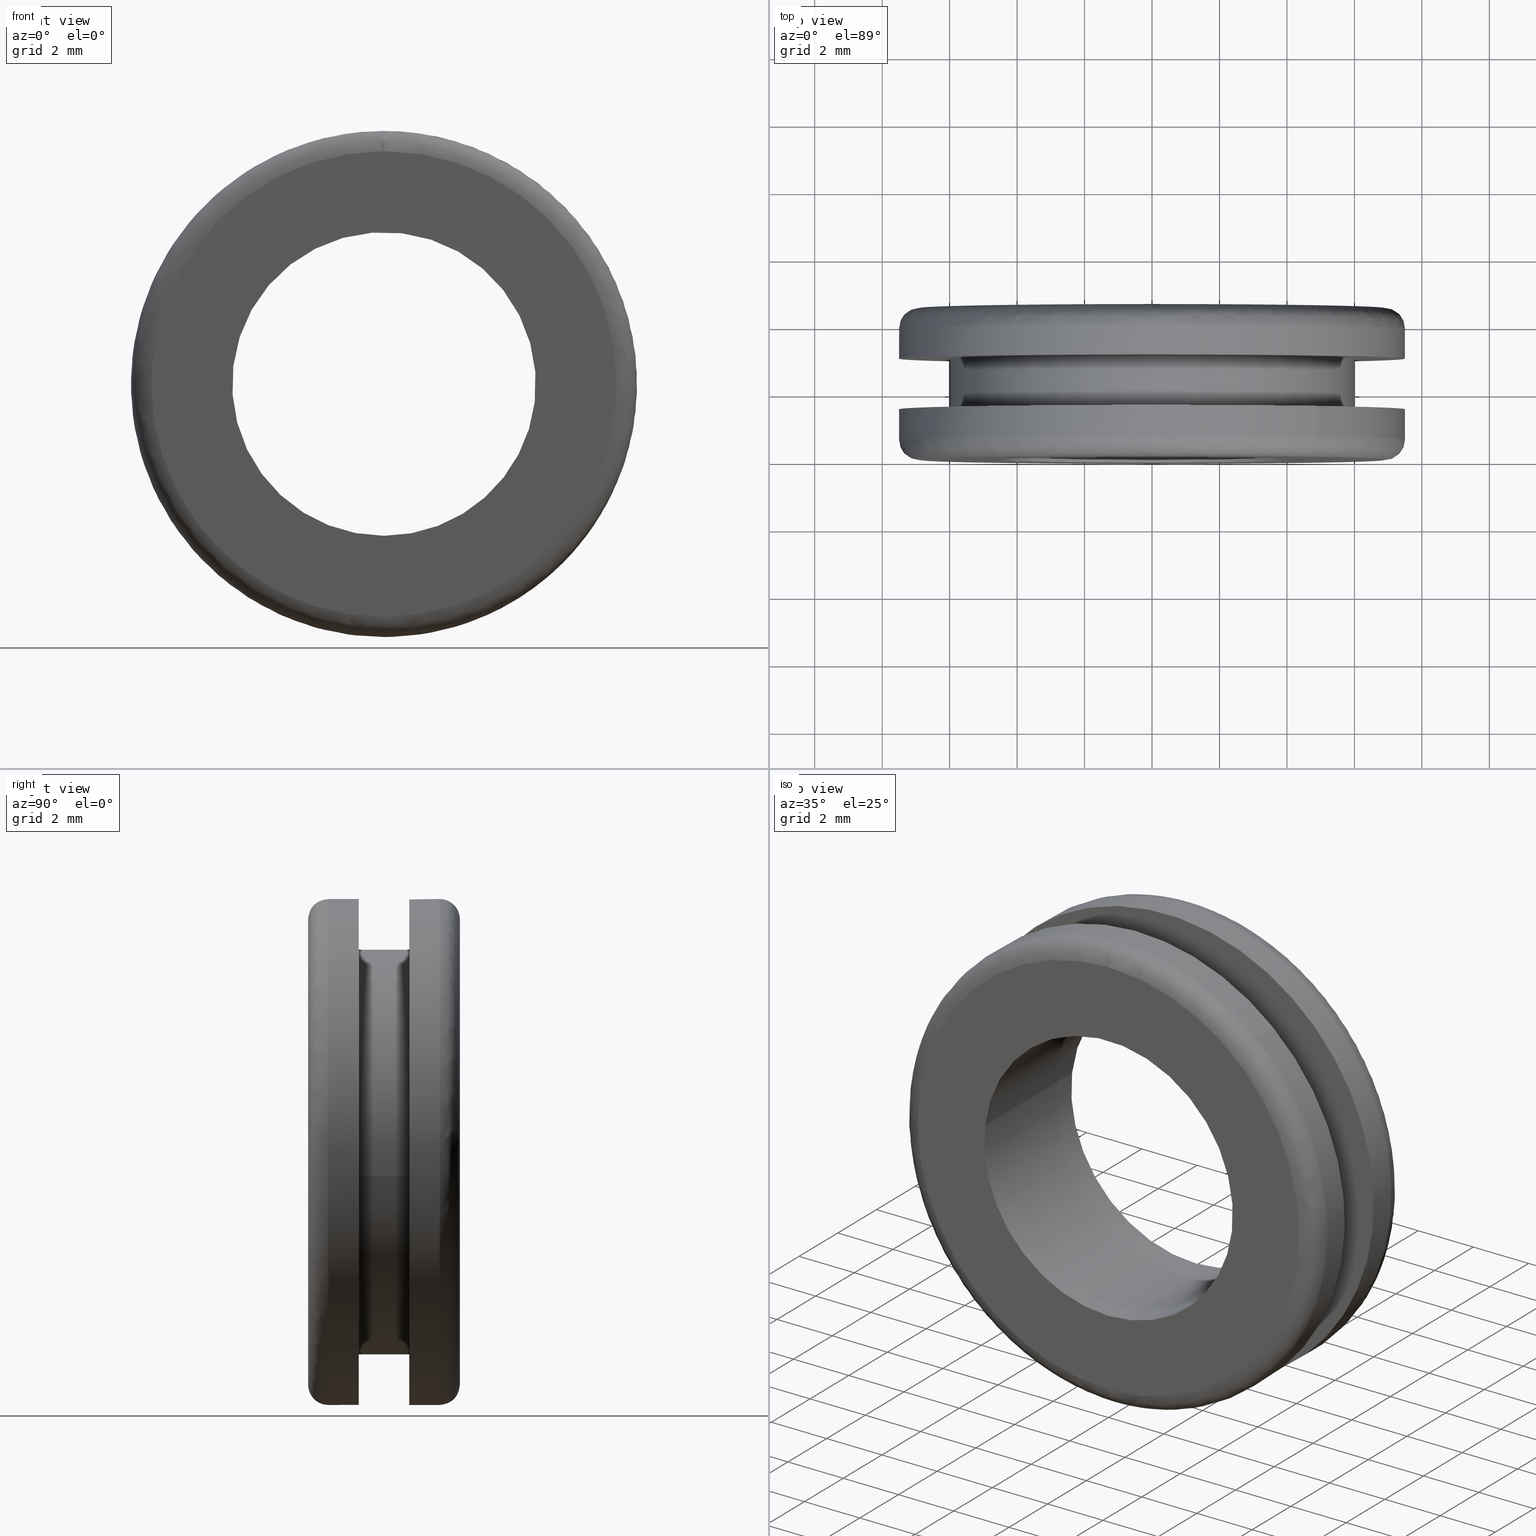
[diagram: canonical four-view strip — front | top / right | iso, engineering-drawing reading convention]
A machine part, canonical four-view strip (front | top / right | iso — engineering-drawing reading convention). The complete STEP part file that produces these views, byte-faithful:
ISO-10303-21;
HEADER;

FILE_DESCRIPTION( (''), '2;1');
FILE_NAME ('PC14.7972.TM_NG_79_E_CRUL_29371.stp','2019-12-12T16:35:32',(''),(''),'spGate 15.6.1','','');

FILE_SCHEMA (('AUTOMOTIVE_DESIGN'));
ENDSEC;

DATA;
#10=(GEOMETRIC_REPRESENTATION_CONTEXT(3) GLOBAL_UNCERTAINTY_ASSIGNED_CONTEXT((#11)) GLOBAL_UNIT_ASSIGNED_CONTEXT((#12,#13,#14)) REPRESENTATION_CONTEXT('ID1','3D'));
#11=UNCERTAINTY_MEASURE_WITH_UNIT(LENGTH_MEASURE(0.01),#15,'DISTANCE_ACCURACY_VALUE','Maximum model space distance between geometric entities at asserted connectivities');
#12=(NAMED_UNIT(*) SI_UNIT($,.STERADIAN.) SOLID_ANGLE_UNIT());
#13=(CONVERSION_BASED_UNIT('DEGREE',#16) NAMED_UNIT(#17) PLANE_ANGLE_UNIT());
#14=(LENGTH_UNIT() NAMED_UNIT(*) SI_UNIT(.MILLI.,.METRE.));
#15=(LENGTH_UNIT() NAMED_UNIT(*) SI_UNIT(.MILLI.,.METRE.));
#16=PLANE_ANGLE_MEASURE_WITH_UNIT(PLANE_ANGLE_MEASURE(0.01745329252),#18);
#17=DIMENSIONAL_EXPONENTS(0.0,0.0,0.0,0.0,0.0,0.0,0.0);
#18=(NAMED_UNIT(*) PLANE_ANGLE_UNIT() SI_UNIT($,.RADIAN.));
#19=MANIFOLD_SOLID_BREP('TM_NG_79_E_CRUL',#31);
#20=ADVANCED_BREP_SHAPE_REPRESENTATION('',(#19),#10);
#21=APPLICATION_CONTEXT('');
#22=APPLICATION_PROTOCOL_DEFINITION('International Standard','automotive_design',1999,#21);
#23=PRODUCT_DEFINITION_CONTEXT('',#21,'design');
#24=PRODUCT_CONTEXT('',#21,'mechanical');
#25=PRODUCT('','','',(#24));
#26=PRODUCT_DEFINITION_FORMATION_WITH_SPECIFIED_SOURCE('','',#25,.NOT_KNOWN.);
#27=PRODUCT_RELATED_PRODUCT_CATEGORY('tool','tool',(#25));
#28=PRODUCT_DEFINITION('','',#26,#23);
#29=PRODUCT_DEFINITION_SHAPE('','',#28);
#30=SHAPE_DEFINITION_REPRESENTATION(#29,#20);
#31=CLOSED_SHELL('',(#40,#41,#42,#43,#44,#45,#46,#47,#48,#49,#50,#51,#52,#53,#54,#55));
#32=COLOUR_RGB('',0.00000000000E+000,0.00000000000E+000,0.00000000000E+000);
#33=FILL_AREA_STYLE_COLOUR('',#32);
#34=FILL_AREA_STYLE('',(#33));
#35=SURFACE_STYLE_FILL_AREA(#34);
#36=SURFACE_SIDE_STYLE('',(#35));
#37=SURFACE_STYLE_USAGE(.BOTH.,#36);
#38=PRESENTATION_STYLE_ASSIGNMENT((#37));
#39=STYLED_ITEM('',(#38),#19);
#40=ADVANCED_FACE('',(#57,#58),#56,.F.);
#41=ADVANCED_FACE('',(#68,#69),#67,.F.);
#42=ADVANCED_FACE('',(#79,#80),#78,.F.);
#43=ADVANCED_FACE('',(#90,#91),#89,.F.);
#44=ADVANCED_FACE('',(#101),#100,.T.);
#45=ADVANCED_FACE('',(#111),#110,.T.);
#46=ADVANCED_FACE('',(#121),#120,.T.);
#47=ADVANCED_FACE('',(#131),#130,.T.);
#48=ADVANCED_FACE('',(#141),#140,.F.);
#49=ADVANCED_FACE('',(#151),#150,.F.);
#50=ADVANCED_FACE('',(#161),#160,.T.);
#51=ADVANCED_FACE('',(#171),#170,.T.);
#52=ADVANCED_FACE('',(#181),#180,.T.);
#53=ADVANCED_FACE('',(#191),#190,.T.);
#54=ADVANCED_FACE('',(#201),#200,.T.);
#55=ADVANCED_FACE('',(#211),#210,.T.);
#56=PLANE('',#223);
#57=FACE_OUTER_BOUND('',#224,.T.);
#58=FACE_BOUND('',#225,.T.);
#59=COLOUR_RGB('',1.00000000000E+000,1.00000000000E+000,1.00000000000E+000);
#60=FILL_AREA_STYLE_COLOUR('',#59);
#61=FILL_AREA_STYLE('',(#60));
#62=SURFACE_STYLE_FILL_AREA(#61);
#63=SURFACE_SIDE_STYLE('',(#62));
#64=SURFACE_STYLE_USAGE(.BOTH.,#63);
#65=PRESENTATION_STYLE_ASSIGNMENT((#64));
#66=STYLED_ITEM('',(#65),#40);
#67=PLANE('',#229);
#68=FACE_OUTER_BOUND('',#230,.T.);
#69=FACE_BOUND('',#231,.T.);
#70=COLOUR_RGB('',1.00000000000E+000,1.00000000000E+000,1.00000000000E+000);
#71=FILL_AREA_STYLE_COLOUR('',#70);
#72=FILL_AREA_STYLE('',(#71));
#73=SURFACE_STYLE_FILL_AREA(#72);
#74=SURFACE_SIDE_STYLE('',(#73));
#75=SURFACE_STYLE_USAGE(.BOTH.,#74);
#76=PRESENTATION_STYLE_ASSIGNMENT((#75));
#77=STYLED_ITEM('',(#76),#41);
#78=PLANE('',#235);
#79=FACE_OUTER_BOUND('',#236,.T.);
#80=FACE_BOUND('',#237,.T.);
#81=COLOUR_RGB('',1.00000000000E+000,1.00000000000E+000,1.00000000000E+000);
#82=FILL_AREA_STYLE_COLOUR('',#81);
#83=FILL_AREA_STYLE('',(#82));
#84=SURFACE_STYLE_FILL_AREA(#83);
#85=SURFACE_SIDE_STYLE('',(#84));
#86=SURFACE_STYLE_USAGE(.BOTH.,#85);
#87=PRESENTATION_STYLE_ASSIGNMENT((#86));
#88=STYLED_ITEM('',(#87),#42);
#89=PLANE('',#241);
#90=FACE_OUTER_BOUND('',#242,.T.);
#91=FACE_BOUND('',#243,.T.);
#92=COLOUR_RGB('',1.00000000000E+000,1.00000000000E+000,1.00000000000E+000);
#93=FILL_AREA_STYLE_COLOUR('',#92);
#94=FILL_AREA_STYLE('',(#93));
#95=SURFACE_STYLE_FILL_AREA(#94);
#96=SURFACE_SIDE_STYLE('',(#95));
#97=SURFACE_STYLE_USAGE(.BOTH.,#96);
#98=PRESENTATION_STYLE_ASSIGNMENT((#97));
#99=STYLED_ITEM('',(#98),#43);
#100=CYLINDRICAL_SURFACE('',#247,7.50000000000E+000);
#101=FACE_OUTER_BOUND('',#248,.T.);
#102=COLOUR_RGB('',1.00000000000E+000,1.00000000000E+000,1.00000000000E+000);
#103=FILL_AREA_STYLE_COLOUR('',#102);
#104=FILL_AREA_STYLE('',(#103));
#105=SURFACE_STYLE_FILL_AREA(#104);
#106=SURFACE_SIDE_STYLE('',(#105));
#107=SURFACE_STYLE_USAGE(.BOTH.,#106);
#108=PRESENTATION_STYLE_ASSIGNMENT((#107));
#109=STYLED_ITEM('',(#108),#44);
#110=CYLINDRICAL_SURFACE('',#252,7.50000000000E+000);
#111=FACE_OUTER_BOUND('',#253,.T.);
#112=COLOUR_RGB('',1.00000000000E+000,1.00000000000E+000,1.00000000000E+000);
#113=FILL_AREA_STYLE_COLOUR('',#112);
#114=FILL_AREA_STYLE('',(#113));
#115=SURFACE_STYLE_FILL_AREA(#114);
#116=SURFACE_SIDE_STYLE('',(#115));
#117=SURFACE_STYLE_USAGE(.BOTH.,#116);
#118=PRESENTATION_STYLE_ASSIGNMENT((#117));
#119=STYLED_ITEM('',(#118),#45);
#120=CYLINDRICAL_SURFACE('',#257,6.00000000000E+000);
#121=FACE_OUTER_BOUND('',#258,.T.);
#122=COLOUR_RGB('',1.00000000000E+000,1.00000000000E+000,1.00000000000E+000);
#123=FILL_AREA_STYLE_COLOUR('',#122);
#124=FILL_AREA_STYLE('',(#123));
#125=SURFACE_STYLE_FILL_AREA(#124);
#126=SURFACE_SIDE_STYLE('',(#125));
#127=SURFACE_STYLE_USAGE(.BOTH.,#126);
#128=PRESENTATION_STYLE_ASSIGNMENT((#127));
#129=STYLED_ITEM('',(#128),#46);
#130=CYLINDRICAL_SURFACE('',#262,6.00000000000E+000);
#131=FACE_OUTER_BOUND('',#263,.T.);
#132=COLOUR_RGB('',1.00000000000E+000,1.00000000000E+000,1.00000000000E+000);
#133=FILL_AREA_STYLE_COLOUR('',#132);
#134=FILL_AREA_STYLE('',(#133));
#135=SURFACE_STYLE_FILL_AREA(#134);
#136=SURFACE_SIDE_STYLE('',(#135));
#137=SURFACE_STYLE_USAGE(.BOTH.,#136);
#138=PRESENTATION_STYLE_ASSIGNMENT((#137));
#139=STYLED_ITEM('',(#138),#47);
#140=CYLINDRICAL_SURFACE('',#267,4.50000000000E+000);
#141=FACE_OUTER_BOUND('',#268,.T.);
#142=COLOUR_RGB('',1.00000000000E+000,1.00000000000E+000,1.00000000000E+000);
#143=FILL_AREA_STYLE_COLOUR('',#142);
#144=FILL_AREA_STYLE('',(#143));
#145=SURFACE_STYLE_FILL_AREA(#144);
#146=SURFACE_SIDE_STYLE('',(#145));
#147=SURFACE_STYLE_USAGE(.BOTH.,#146);
#148=PRESENTATION_STYLE_ASSIGNMENT((#147));
#149=STYLED_ITEM('',(#148),#48);
#150=CYLINDRICAL_SURFACE('',#272,4.50000000000E+000);
#151=FACE_OUTER_BOUND('',#273,.T.);
#152=COLOUR_RGB('',1.00000000000E+000,1.00000000000E+000,1.00000000000E+000);
#153=FILL_AREA_STYLE_COLOUR('',#152);
#154=FILL_AREA_STYLE('',(#153));
#155=SURFACE_STYLE_FILL_AREA(#154);
#156=SURFACE_SIDE_STYLE('',(#155));
#157=SURFACE_STYLE_USAGE(.BOTH.,#156);
#158=PRESENTATION_STYLE_ASSIGNMENT((#157));
#159=STYLED_ITEM('',(#158),#49);
#160=CYLINDRICAL_SURFACE('',#277,7.50000000000E+000);
#161=FACE_OUTER_BOUND('',#278,.T.);
#162=COLOUR_RGB('',1.00000000000E+000,1.00000000000E+000,1.00000000000E+000);
#163=FILL_AREA_STYLE_COLOUR('',#162);
#164=FILL_AREA_STYLE('',(#163));
#165=SURFACE_STYLE_FILL_AREA(#164);
#166=SURFACE_SIDE_STYLE('',(#165));
#167=SURFACE_STYLE_USAGE(.BOTH.,#166);
#168=PRESENTATION_STYLE_ASSIGNMENT((#167));
#169=STYLED_ITEM('',(#168),#50);
#170=CYLINDRICAL_SURFACE('',#282,7.50000000000E+000);
#171=FACE_OUTER_BOUND('',#283,.T.);
#172=COLOUR_RGB('',1.00000000000E+000,1.00000000000E+000,1.00000000000E+000);
#173=FILL_AREA_STYLE_COLOUR('',#172);
#174=FILL_AREA_STYLE('',(#173));
#175=SURFACE_STYLE_FILL_AREA(#174);
#176=SURFACE_SIDE_STYLE('',(#175));
#177=SURFACE_STYLE_USAGE(.BOTH.,#176);
#178=PRESENTATION_STYLE_ASSIGNMENT((#177));
#179=STYLED_ITEM('',(#178),#51);
#180=( BOUNDED_SURFACE() B_SPLINE_SURFACE( 2,2,((#284,#285,#286,#287,#288),(#289,#290,#291,#292,#293),(#294,#295,#296,#297,#298),(#299,#300,#301,#302,#303),(#304,#305,#306,#307,#308)), .UNSPECIFIED.,.F.,.F.,.F.) B_SPLINE_SURFACE_WITH_KNOTS((3,2,3),(3,2,3),(0.00000000000E+000,5.00000000000E-001,1.00000000000E+000),(0.00000000000E+000,5.00000000000E-001,1.00000000000E+000), .UNSPECIFIED. ) GEOMETRIC_REPRESENTATION_ITEM() RATIONAL_B_SPLINE_SURFACE(((1.00000000000E+000,7.07106781187E-001,1.00000000000E+000,7.07106781187E-001,1.00000000000E+000),(7.07106781187E-001,5.00000000000E-001,7.07106781187E-001,5.00000000000E-001,7.07106781187E-001),(1.00000000000E+000,7.07106781187E-001,1.00000000000E+000,7.07106781187E-001,1.00000000000E+000),(7.07106781187E-001,5.00000000000E-001,7.07106781187E-001,5.00000000000E-001,7.07106781187E-001),(1.00000000000E+000,7.07106781187E-001,1.00000000000E+000,7.07106781187E-001,1.00000000000E+000))) REPRESENTATION_ITEM('') SURFACE() );
#181=FACE_OUTER_BOUND('',#309,.T.);
#182=COLOUR_RGB('',1.00000000000E+000,1.00000000000E+000,1.00000000000E+000);
#183=FILL_AREA_STYLE_COLOUR('',#182);
#184=FILL_AREA_STYLE('',(#183));
#185=SURFACE_STYLE_FILL_AREA(#184);
#186=SURFACE_SIDE_STYLE('',(#185));
#187=SURFACE_STYLE_USAGE(.BOTH.,#186);
#188=PRESENTATION_STYLE_ASSIGNMENT((#187));
#189=STYLED_ITEM('',(#188),#52);
#190=( BOUNDED_SURFACE() B_SPLINE_SURFACE( 2,2,((#310,#311,#312,#313,#314),(#315,#316,#317,#318,#319),(#320,#321,#322,#323,#324),(#325,#326,#327,#328,#329),(#330,#331,#332,#333,#334)), .UNSPECIFIED.,.F.,.F.,.F.) B_SPLINE_SURFACE_WITH_KNOTS((3,2,3),(3,2,3),(0.00000000000E+000,5.00000000000E-001,1.00000000000E+000),(0.00000000000E+000,5.00000000000E-001,1.00000000000E+000), .UNSPECIFIED. ) GEOMETRIC_REPRESENTATION_ITEM() RATIONAL_B_SPLINE_SURFACE(((1.00000000000E+000,7.07106781187E-001,1.00000000000E+000,7.07106781187E-001,1.00000000000E+000),(7.07106781187E-001,5.00000000000E-001,7.07106781187E-001,5.00000000000E-001,7.07106781187E-001),(1.00000000000E+000,7.07106781187E-001,1.00000000000E+000,7.07106781187E-001,1.00000000000E+000),(7.07106781187E-001,5.00000000000E-001,7.07106781187E-001,5.00000000000E-001,7.07106781187E-001),(1.00000000000E+000,7.07106781187E-001,1.00000000000E+000,7.07106781187E-001,1.00000000000E+000))) REPRESENTATION_ITEM('') SURFACE() );
#191=FACE_OUTER_BOUND('',#335,.T.);
#192=COLOUR_RGB('',1.00000000000E+000,1.00000000000E+000,1.00000000000E+000);
#193=FILL_AREA_STYLE_COLOUR('',#192);
#194=FILL_AREA_STYLE('',(#193));
#195=SURFACE_STYLE_FILL_AREA(#194);
#196=SURFACE_SIDE_STYLE('',(#195));
#197=SURFACE_STYLE_USAGE(.BOTH.,#196);
#198=PRESENTATION_STYLE_ASSIGNMENT((#197));
#199=STYLED_ITEM('',(#198),#53);
#200=( BOUNDED_SURFACE() B_SPLINE_SURFACE( 2,2,((#336,#337,#338,#339,#340),(#341,#342,#343,#344,#345),(#346,#347,#348,#349,#350),(#351,#352,#353,#354,#355),(#356,#357,#358,#359,#360)), .UNSPECIFIED.,.F.,.F.,.F.) B_SPLINE_SURFACE_WITH_KNOTS((3,2,3),(3,2,3),(0.00000000000E+000,5.00000000000E-001,1.00000000000E+000),(0.00000000000E+000,5.00000000000E-001,1.00000000000E+000), .UNSPECIFIED. ) GEOMETRIC_REPRESENTATION_ITEM() RATIONAL_B_SPLINE_SURFACE(((1.00000000000E+000,7.07106780239E-001,1.00000000000E+000,7.07106780239E-001,1.00000000000E+000),(7.07106781187E-001,4.99999999330E-001,7.07106781187E-001,4.99999999330E-001,7.07106781187E-001),(1.00000000000E+000,7.07106780239E-001,1.00000000000E+000,7.07106780239E-001,1.00000000000E+000),(7.07106781187E-001,4.99999999330E-001,7.07106781187E-001,4.99999999330E-001,7.07106781187E-001),(1.00000000000E+000,7.07106780239E-001,1.00000000000E+000,7.07106780239E-001,1.00000000000E+000))) REPRESENTATION_ITEM('') SURFACE() );
#201=FACE_OUTER_BOUND('',#361,.T.);
#202=COLOUR_RGB('',1.00000000000E+000,1.00000000000E+000,1.00000000000E+000);
#203=FILL_AREA_STYLE_COLOUR('',#202);
#204=FILL_AREA_STYLE('',(#203));
#205=SURFACE_STYLE_FILL_AREA(#204);
#206=SURFACE_SIDE_STYLE('',(#205));
#207=SURFACE_STYLE_USAGE(.BOTH.,#206);
#208=PRESENTATION_STYLE_ASSIGNMENT((#207));
#209=STYLED_ITEM('',(#208),#54);
#210=( BOUNDED_SURFACE() B_SPLINE_SURFACE( 2,2,((#362,#363,#364,#365,#366),(#367,#368,#369,#370,#371),(#372,#373,#374,#375,#376),(#377,#378,#379,#380,#381),(#382,#383,#384,#385,#386)), .UNSPECIFIED.,.F.,.F.,.F.) B_SPLINE_SURFACE_WITH_KNOTS((3,2,3),(3,2,3),(0.00000000000E+000,5.00000000000E-001,1.00000000000E+000),(0.00000000000E+000,5.00000000000E-001,1.00000000000E+000), .UNSPECIFIED. ) GEOMETRIC_REPRESENTATION_ITEM() RATIONAL_B_SPLINE_SURFACE(((1.00000000000E+000,7.07106780239E-001,1.00000000000E+000,7.07106780239E-001,1.00000000000E+000),(7.07106781187E-001,4.99999999330E-001,7.07106781187E-001,4.99999999330E-001,7.07106781187E-001),(1.00000000000E+000,7.07106780239E-001,1.00000000000E+000,7.07106780239E-001,1.00000000000E+000),(7.07106781187E-001,4.99999999330E-001,7.07106781187E-001,4.99999999330E-001,7.07106781187E-001),(1.00000000000E+000,7.07106780239E-001,1.00000000000E+000,7.07106780239E-001,1.00000000000E+000))) REPRESENTATION_ITEM('') SURFACE() );
#211=FACE_OUTER_BOUND('',#387,.T.);
#212=COLOUR_RGB('',1.00000000000E+000,1.00000000000E+000,1.00000000000E+000);
#213=FILL_AREA_STYLE_COLOUR('',#212);
#214=FILL_AREA_STYLE('',(#213));
#215=SURFACE_STYLE_FILL_AREA(#214);
#216=SURFACE_SIDE_STYLE('',(#215));
#217=SURFACE_STYLE_USAGE(.BOTH.,#216);
#218=PRESENTATION_STYLE_ASSIGNMENT((#217));
#219=STYLED_ITEM('',(#218),#55);
#220=CARTESIAN_POINT('',(-1.71222702354E+001,1.50000000000E+000,1.68422470606E+001));
#221=DIRECTION('',(0.00000000000E+000,-1.00000000000E+000,0.00000000000E+000));
#222=DIRECTION('',(0.00000000000E+000,0.00000000000E+000,-1.00000000000E+000));
#223=AXIS2_PLACEMENT_3D('',#220,#221,#222);
#224=EDGE_LOOP('',(#388,#389,#390));
#225=EDGE_LOOP('',(#391,#392,#393));
#226=CARTESIAN_POINT('',(-1.55884572681E+001,3.00000000000E+000,-9.74999999995E+000));
#227=DIRECTION('',(0.00000000000E+000,1.00000000000E+000,0.00000000000E+000));
#228=DIRECTION('',(0.00000000000E+000,0.00000000000E+000,1.00000000000E+000));
#229=AXIS2_PLACEMENT_3D('',#226,#227,#228);
#230=EDGE_LOOP('',(#394,#395,#396));
#231=EDGE_LOOP('',(#397,#398,#399));
#232=CARTESIAN_POINT('',(-8.97000001665E+000,4.50000000000E+000,1.43413806975E+001));
#233=DIRECTION('',(0.00000000000E+000,-1.00000000000E+000,0.00000000000E+000));
#234=DIRECTION('',(0.00000000000E+000,0.00000000000E+000,-1.00000000000E+000));
#235=AXIS2_PLACEMENT_3D('',#232,#233,#234);
#236=EDGE_LOOP('',(#400,#401,#402));
#237=EDGE_LOOP('',(#403,#404,#405));
#238=CARTESIAN_POINT('',(-1.43413806878E+001,-1.04703800000E-015,-1.58700000007E+001));
#239=DIRECTION('',(0.00000000000E+000,1.00000000000E+000,0.00000000000E+000));
#240=DIRECTION('',(0.00000000000E+000,0.00000000000E+000,1.00000000000E+000));
#241=AXIS2_PLACEMENT_3D('',#238,#239,#240);
#242=EDGE_LOOP('',(#406,#407));
#243=EDGE_LOOP('',(#408,#409,#410));
#244=CARTESIAN_POINT('',(8.76113127755E-016,1.52250000000E+000,2.83363811710E-016));
#245=DIRECTION('',(-2.55198190382E-017,1.00000000000E+000,-1.70686385160E-017));
#246=DIRECTION('',(6.54339657003E-001,2.96059473233E-017,7.56200775769E-001));
#247=AXIS2_PLACEMENT_3D('',#244,#245,#246);
#248=EDGE_LOOP('',(#411,#412,#413,#414,#415,#416));
#249=CARTESIAN_POINT('',(8.76113127755E-016,1.52250000000E+000,2.83363811710E-016));
#250=DIRECTION('',(-2.55198190382E-017,1.00000000000E+000,-1.70686385160E-017));
#251=DIRECTION('',(6.54339657003E-001,2.96059473233E-017,7.56200775769E-001));
#252=AXIS2_PLACEMENT_3D('',#249,#250,#251);
#253=EDGE_LOOP('',(#417,#418,#419,#420,#421,#422,#423));
#254=CARTESIAN_POINT('',(4.75075969268E-016,3.03750000000E+000,2.20901460673E-016));
#255=DIRECTION('',(1.47198997094E-016,1.00000000000E+000,1.86543230728E-015));
#256=DIRECTION('',(-9.93009526364E-001,-7.40148683083E-017,1.18034234657E-001));
#257=AXIS2_PLACEMENT_3D('',#254,#255,#256);
#258=EDGE_LOOP('',(#424,#425,#426,#427));
#259=CARTESIAN_POINT('',(4.75075969268E-016,3.03750000000E+000,2.20901460673E-016));
#260=DIRECTION('',(1.47198997094E-016,1.00000000000E+000,1.86543230728E-015));
#261=DIRECTION('',(-9.93009526364E-001,-7.40148683083E-017,1.18034234657E-001));
#262=AXIS2_PLACEMENT_3D('',#259,#260,#261);
#263=EDGE_LOOP('',(#428,#429,#430,#431,#432,#433));
#264=CARTESIAN_POINT('',(8.41911254280E-017,4.61250000000E+000,5.75740383094E-016));
#265=DIRECTION('',(-6.34528310202E-017,1.00000000000E+000,3.02261674367E-016));
#266=DIRECTION('',(-9.93009526364E-001,-9.86864910778E-017,1.18034234657E-001));
#267=AXIS2_PLACEMENT_3D('',#264,#265,#266);
#268=EDGE_LOOP('',(#434,#435,#436,#437));
#269=CARTESIAN_POINT('',(8.41911254280E-017,4.61250000000E+000,5.75740383094E-016));
#270=DIRECTION('',(-6.34528310202E-017,1.00000000000E+000,3.02261674367E-016));
#271=DIRECTION('',(-9.93009526364E-001,-9.86864910778E-017,1.18034234657E-001));
#272=AXIS2_PLACEMENT_3D('',#269,#270,#271);
#273=EDGE_LOOP('',(#438,#439,#440,#441,#442,#443));
#274=CARTESIAN_POINT('',(3.33664112627E-016,3.92250000001E+000,-9.54212877895E-017));
#275=DIRECTION('',(7.05747346417E-016,1.00000000000E+000,-2.01829678712E-016));
#276=DIRECTION('',(-3.51617974392E-001,5.92118946467E-017,-9.36143578777E-001));
#277=AXIS2_PLACEMENT_3D('',#274,#275,#276);
#278=EDGE_LOOP('',(#444,#445,#446,#447,#448,#449));
#279=CARTESIAN_POINT('',(3.33664112627E-016,3.92250000001E+000,-9.54212877895E-017));
#280=DIRECTION('',(7.05747346417E-016,1.00000000000E+000,-2.01829678712E-016));
#281=DIRECTION('',(-3.51617974392E-001,5.92118946467E-017,-9.36143578777E-001));
#282=AXIS2_PLACEMENT_3D('',#279,#280,#281);
#283=EDGE_LOOP('',(#450,#451,#452,#453,#454,#455));
#284=CARTESIAN_POINT('',(-1.72513750247E-014,3.90000000000E+000,6.30000000000E+000));
#285=CARTESIAN_POINT('',(-1.60042791616E-014,4.50000000000E+000,6.30000000000E+000));
#286=CARTESIAN_POINT('',(-1.60777555428E-014,4.50000000000E+000,6.90000000000E+000));
#287=CARTESIAN_POINT('',(-1.61512319240E-014,4.50000000000E+000,7.50000000000E+000));
#288=CARTESIAN_POINT('',(-1.73983277871E-014,3.90000000000E+000,7.50000000000E+000));
#289=CARTESIAN_POINT('',(-6.30000000000E+000,3.90000000000E+000,6.30000000000E+000));
#290=CARTESIAN_POINT('',(-6.30000000000E+000,4.50000000000E+000,6.30000000000E+000));
#291=CARTESIAN_POINT('',(-6.90000000000E+000,4.50000000000E+000,6.90000000000E+000));
#292=CARTESIAN_POINT('',(-7.50000000000E+000,4.50000000000E+000,7.50000000000E+000));
#293=CARTESIAN_POINT('',(-7.50000000000E+000,3.90000000000E+000,7.50000000000E+000));
#294=CARTESIAN_POINT('',(-6.30000000000E+000,3.90000000000E+000,-9.40608059639E-014));
#295=CARTESIAN_POINT('',(-6.30000000000E+000,4.50000000000E+000,-8.84053971206E-014));
#296=CARTESIAN_POINT('',(-6.90000000000E+000,4.50000000000E+000,-8.84421340978E-014));
#297=CARTESIAN_POINT('',(-7.50000000000E+000,4.50000000000E+000,-8.84788710751E-014));
#298=CARTESIAN_POINT('',(-7.50000000000E+000,3.90000000000E+000,-9.41342799184E-014));
#299=CARTESIAN_POINT('',(-6.30000000000E+000,3.90000000000E+000,-6.30000000000E+000));
#300=CARTESIAN_POINT('',(-6.30000000000E+000,4.50000000000E+000,-6.30000000000E+000));
#301=CARTESIAN_POINT('',(-6.90000000000E+000,4.50000000000E+000,-6.90000000000E+000));
#302=CARTESIAN_POINT('',(-7.50000000000E+000,4.50000000000E+000,-7.50000000000E+000));
#303=CARTESIAN_POINT('',(-7.50000000000E+000,3.90000000000E+000,-7.50000000000E+000));
#304=CARTESIAN_POINT('',(-1.64798985023E-014,3.90000000000E+000,-6.30000000000E+000));
#305=CARTESIAN_POINT('',(-1.52328026392E-014,4.50000000000E+000,-6.30000000000E+000));
#306=CARTESIAN_POINT('',(-1.52328050660E-014,4.50000000000E+000,-6.90000000000E+000));
#307=CARTESIAN_POINT('',(-1.52328074927E-014,4.50000000000E+000,-7.50000000000E+000));
#308=CARTESIAN_POINT('',(-1.64799033558E-014,3.90000000000E+000,-7.50000000000E+000));
#309=EDGE_LOOP('',(#456,#457,#458,#459,#460,#461,#462));
#310=CARTESIAN_POINT('',(-1.64798985023E-014,3.90000000000E+000,-6.30000000000E+000));
#311=CARTESIAN_POINT('',(-1.52328026392E-014,4.50000000000E+000,-6.30000000000E+000));
#312=CARTESIAN_POINT('',(-1.52328050660E-014,4.50000000000E+000,-6.90000000000E+000));
#313=CARTESIAN_POINT('',(-1.52328074927E-014,4.50000000000E+000,-7.50000000000E+000));
#314=CARTESIAN_POINT('',(-1.64799033558E-014,3.90000000000E+000,-7.50000000000E+000));
#315=CARTESIAN_POINT('',(6.30000000000E+000,3.90000000000E+000,-6.30000000000E+000));
#316=CARTESIAN_POINT('',(6.30000000000E+000,4.50000000000E+000,-6.30000000000E+000));
#317=CARTESIAN_POINT('',(6.90000000000E+000,4.50000000000E+000,-6.90000000000E+000));
#318=CARTESIAN_POINT('',(7.50000000000E+000,4.50000000000E+000,-7.50000000000E+000));
#319=CARTESIAN_POINT('',(7.50000000000E+000,3.90000000000E+000,-7.50000000000E+000));
#320=CARTESIAN_POINT('',(6.30000000000E+000,3.90000000000E+000,-9.40608569250E-014));
#321=CARTESIAN_POINT('',(6.30000000000E+000,4.50000000000E+000,-8.84054480817E-014));
#322=CARTESIAN_POINT('',(6.90000000000E+000,4.50000000000E+000,-8.84421899124E-014));
#323=CARTESIAN_POINT('',(7.50000000000E+000,4.50000000000E+000,-8.84789317431E-014));
#324=CARTESIAN_POINT('',(7.50000000000E+000,3.90000000000E+000,-9.41343405864E-014));
#325=CARTESIAN_POINT('',(6.30000000000E+000,3.90000000000E+000,6.30000000000E+000));
#326=CARTESIAN_POINT('',(6.30000000000E+000,4.50000000000E+000,6.30000000000E+000));
#327=CARTESIAN_POINT('',(6.90000000000E+000,4.50000000000E+000,6.90000000000E+000));
#328=CARTESIAN_POINT('',(7.50000000000E+000,4.50000000000E+000,7.50000000000E+000));
#329=CARTESIAN_POINT('',(7.50000000000E+000,3.90000000000E+000,7.50000000000E+000));
#330=CARTESIAN_POINT('',(-1.57083200578E-014,3.90000000000E+000,6.30000000000E+000));
#331=CARTESIAN_POINT('',(-1.44612241947E-014,4.50000000000E+000,6.30000000000E+000));
#332=CARTESIAN_POINT('',(-1.43877429600E-014,4.50000000000E+000,6.90000000000E+000));
#333=CARTESIAN_POINT('',(-1.43142617253E-014,4.50000000000E+000,7.50000000000E+000));
#334=CARTESIAN_POINT('',(-1.55613575884E-014,3.90000000000E+000,7.50000000000E+000));
#335=EDGE_LOOP('',(#463,#464,#465,#466,#467));
#336=CARTESIAN_POINT('',(1.73469314198E-015,6.00000000000E-001,-7.50000000000E+000));
#337=CARTESIAN_POINT('',(1.73469314198E-015,-1.60783238074E-009,-7.50000000000E+000));
#338=CARTESIAN_POINT('',(1.73469556870E-015,-3.43058914609E-014,-6.89999999839E+000));
#339=CARTESIAN_POINT('',(1.73469799542E-015,1.60776384621E-009,-6.29999999678E+000));
#340=CARTESIAN_POINT('',(1.73469799542E-015,6.00000003216E-001,-6.30000000000E+000));
#341=CARTESIAN_POINT('',(7.50000000000E+000,6.00000000000E-001,-7.50000000000E+000));
#342=CARTESIAN_POINT('',(7.50000000000E+000,-1.60783238074E-009,-7.50000000000E+000));
#343=CARTESIAN_POINT('',(6.89999999839E+000,-3.43058914609E-014,-6.89999999839E+000));
#344=CARTESIAN_POINT('',(6.29999999678E+000,1.60776384621E-009,-6.29999999678E+000));
#345=CARTESIAN_POINT('',(6.30000000000E+000,6.00000003216E-001,-6.30000000000E+000));
#346=CARTESIAN_POINT('',(7.50000000000E+000,6.00000000000E-001,6.79139397436E-016));
#347=CARTESIAN_POINT('',(7.50000000000E+000,-1.60783238074E-009,6.79139397436E-016));
#348=CARTESIAN_POINT('',(6.89999999839E+000,-3.43058914609E-014,7.15881228228E-016));
#349=CARTESIAN_POINT('',(6.29999999678E+000,1.60776384621E-009,7.52623059021E-016));
#350=CARTESIAN_POINT('',(6.30000000000E+000,6.00000003216E-001,7.52623058824E-016));
#351=CARTESIAN_POINT('',(7.50000000000E+000,6.00000000000E-001,7.50000000000E+000));
#352=CARTESIAN_POINT('',(7.50000000000E+000,-1.60783238074E-009,7.50000000000E+000));
#353=CARTESIAN_POINT('',(6.89999999839E+000,-3.43058914609E-014,6.89999999839E+000));
#354=CARTESIAN_POINT('',(6.29999999678E+000,1.60776384621E-009,6.29999999678E+000));
#355=CARTESIAN_POINT('',(6.30000000000E+000,6.00000003216E-001,6.30000000000E+000));
#356=CARTESIAN_POINT('',(2.65323890933E-015,6.00000000000E-001,7.50000000000E+000));
#357=CARTESIAN_POINT('',(2.65323890933E-015,-1.60783238074E-009,7.50000000000E+000));
#358=CARTESIAN_POINT('',(2.57975767447E-015,-3.43058914609E-014,6.89999999839E+000));
#359=CARTESIAN_POINT('',(2.50627643960E-015,1.60776384621E-009,6.29999999678E+000));
#360=CARTESIAN_POINT('',(2.50627643999E-015,6.00000003216E-001,6.30000000000E+000));
#361=EDGE_LOOP('',(#468,#469,#470,#471,#472,#473));
#362=CARTESIAN_POINT('',(2.65323890933E-015,6.00000000000E-001,7.50000000000E+000));
#363=CARTESIAN_POINT('',(2.65323890933E-015,-1.60783238074E-009,7.50000000000E+000));
#364=CARTESIAN_POINT('',(2.57975767447E-015,-3.43058914609E-014,6.89999999839E+000));
#365=CARTESIAN_POINT('',(2.50627643960E-015,1.60776384621E-009,6.29999999678E+000));
#366=CARTESIAN_POINT('',(2.50627643999E-015,6.00000003216E-001,6.30000000000E+000));
#367=CARTESIAN_POINT('',(-7.50000000000E+000,6.00000000000E-001,7.50000000000E+000));
#368=CARTESIAN_POINT('',(-7.50000000000E+000,-1.60783238074E-009,7.50000000000E+000));
#369=CARTESIAN_POINT('',(-6.89999999839E+000,-3.43058914609E-014,6.89999999839E+000));
#370=CARTESIAN_POINT('',(-6.29999999678E+000,1.60776384621E-009,6.29999999678E+000));
#371=CARTESIAN_POINT('',(-6.30000000000E+000,6.00000003216E-001,6.30000000000E+000));
#372=CARTESIAN_POINT('',(-7.50000000000E+000,6.00000000000E-001,2.51617026414E-015));
#373=CARTESIAN_POINT('',(-7.50000000000E+000,-1.60783238074E-009,2.51617026414E-015));
#374=CARTESIAN_POINT('',(-6.89999999839E+000,-3.43058914609E-014,2.40594962521E-015));
#375=CARTESIAN_POINT('',(-6.29999999678E+000,1.60776384621E-009,2.29572898627E-015));
#376=CARTESIAN_POINT('',(-6.30000000000E+000,6.00000003216E-001,2.29572898686E-015));
#377=CARTESIAN_POINT('',(-7.50000000000E+000,6.00000000000E-001,-7.50000000000E+000));
#378=CARTESIAN_POINT('',(-7.50000000000E+000,-1.60783238074E-009,-7.50000000000E+000));
#379=CARTESIAN_POINT('',(-6.89999999839E+000,-3.43058914609E-014,-6.89999999839E+000));
#380=CARTESIAN_POINT('',(-6.29999999678E+000,1.60776384621E-009,-6.29999999678E+000));
#381=CARTESIAN_POINT('',(-6.30000000000E+000,6.00000003216E-001,-6.30000000000E+000));
#382=CARTESIAN_POINT('',(-1.02277056738E-016,6.00000000000E-001,-7.50000000000E+000));
#383=CARTESIAN_POINT('',(-1.02277056738E-016,-1.60783238074E-009,-7.50000000000E+000));
#384=CARTESIAN_POINT('',(4.46829862730E-017,-3.43058914609E-014,-6.89999999839E+000));
#385=CARTESIAN_POINT('',(1.91643029284E-016,1.60776384621E-009,-6.29999999678E+000));
#386=CARTESIAN_POINT('',(1.91643028496E-016,6.00000003216E-001,-6.30000000000E+000));
#387=EDGE_LOOP('',(#474,#475,#476,#477,#478,#479));
#388=ORIENTED_EDGE('',*,*,#480,.F.);
#389=ORIENTED_EDGE('',*,*,#481,.F.);
#390=ORIENTED_EDGE('',*,*,#482,.F.);
#391=ORIENTED_EDGE('',*,*,#483,.T.);
#392=ORIENTED_EDGE('',*,*,#484,.T.);
#393=ORIENTED_EDGE('',*,*,#485,.T.);
#394=ORIENTED_EDGE('',*,*,#486,.T.);
#395=ORIENTED_EDGE('',*,*,#487,.T.);
#396=ORIENTED_EDGE('',*,*,#488,.T.);
#397=ORIENTED_EDGE('',*,*,#489,.F.);
#398=ORIENTED_EDGE('',*,*,#490,.F.);
#399=ORIENTED_EDGE('',*,*,#491,.F.);
#400=ORIENTED_EDGE('',*,*,#492,.F.);
#401=ORIENTED_EDGE('',*,*,#493,.F.);
#402=ORIENTED_EDGE('',*,*,#494,.F.);
#403=ORIENTED_EDGE('',*,*,#495,.T.);
#404=ORIENTED_EDGE('',*,*,#496,.T.);
#405=ORIENTED_EDGE('',*,*,#497,.T.);
#406=ORIENTED_EDGE('',*,*,#498,.T.);
#407=ORIENTED_EDGE('',*,*,#499,.T.);
#408=ORIENTED_EDGE('',*,*,#500,.F.);
#409=ORIENTED_EDGE('',*,*,#501,.F.);
#410=ORIENTED_EDGE('',*,*,#502,.F.);
#411=ORIENTED_EDGE('',*,*,#481,.T.);
#412=ORIENTED_EDGE('',*,*,#503,.F.);
#413=ORIENTED_EDGE('',*,*,#504,.F.);
#414=ORIENTED_EDGE('',*,*,#505,.F.);
#415=ORIENTED_EDGE('',*,*,#506,.F.);
#416=ORIENTED_EDGE('',*,*,#507,.T.);
#417=ORIENTED_EDGE('',*,*,#508,.F.);
#418=ORIENTED_EDGE('',*,*,#509,.F.);
#419=ORIENTED_EDGE('',*,*,#510,.F.);
#420=ORIENTED_EDGE('',*,*,#503,.T.);
#421=ORIENTED_EDGE('',*,*,#480,.T.);
#422=ORIENTED_EDGE('',*,*,#482,.T.);
#423=ORIENTED_EDGE('',*,*,#507,.F.);
#424=ORIENTED_EDGE('',*,*,#490,.T.);
#425=ORIENTED_EDGE('',*,*,#511,.F.);
#426=ORIENTED_EDGE('',*,*,#484,.F.);
#427=ORIENTED_EDGE('',*,*,#512,.T.);
#428=ORIENTED_EDGE('',*,*,#483,.F.);
#429=ORIENTED_EDGE('',*,*,#485,.F.);
#430=ORIENTED_EDGE('',*,*,#511,.T.);
#431=ORIENTED_EDGE('',*,*,#489,.T.);
#432=ORIENTED_EDGE('',*,*,#491,.T.);
#433=ORIENTED_EDGE('',*,*,#512,.F.);
#434=ORIENTED_EDGE('',*,*,#501,.T.);
#435=ORIENTED_EDGE('',*,*,#513,.T.);
#436=ORIENTED_EDGE('',*,*,#496,.F.);
#437=ORIENTED_EDGE('',*,*,#514,.F.);
#438=ORIENTED_EDGE('',*,*,#495,.F.);
#439=ORIENTED_EDGE('',*,*,#497,.F.);
#440=ORIENTED_EDGE('',*,*,#513,.F.);
#441=ORIENTED_EDGE('',*,*,#500,.T.);
#442=ORIENTED_EDGE('',*,*,#502,.T.);
#443=ORIENTED_EDGE('',*,*,#514,.T.);
#444=ORIENTED_EDGE('',*,*,#515,.T.);
#445=ORIENTED_EDGE('',*,*,#516,.T.);
#446=ORIENTED_EDGE('',*,*,#517,.T.);
#447=ORIENTED_EDGE('',*,*,#518,.F.);
#448=ORIENTED_EDGE('',*,*,#487,.F.);
#449=ORIENTED_EDGE('',*,*,#519,.T.);
#450=ORIENTED_EDGE('',*,*,#486,.F.);
#451=ORIENTED_EDGE('',*,*,#488,.F.);
#452=ORIENTED_EDGE('',*,*,#518,.T.);
#453=ORIENTED_EDGE('',*,*,#520,.T.);
#454=ORIENTED_EDGE('',*,*,#521,.T.);
#455=ORIENTED_EDGE('',*,*,#519,.F.);
#456=ORIENTED_EDGE('',*,*,#520,.F.);
#457=ORIENTED_EDGE('',*,*,#517,.F.);
#458=ORIENTED_EDGE('',*,*,#516,.F.);
#459=ORIENTED_EDGE('',*,*,#522,.F.);
#460=ORIENTED_EDGE('',*,*,#492,.T.);
#461=ORIENTED_EDGE('',*,*,#494,.T.);
#462=ORIENTED_EDGE('',*,*,#523,.T.);
#463=ORIENTED_EDGE('',*,*,#493,.T.);
#464=ORIENTED_EDGE('',*,*,#522,.T.);
#465=ORIENTED_EDGE('',*,*,#515,.F.);
#466=ORIENTED_EDGE('',*,*,#521,.F.);
#467=ORIENTED_EDGE('',*,*,#523,.F.);
#468=ORIENTED_EDGE('',*,*,#499,.F.);
#469=ORIENTED_EDGE('',*,*,#524,.F.);
#470=ORIENTED_EDGE('',*,*,#505,.T.);
#471=ORIENTED_EDGE('',*,*,#504,.T.);
#472=ORIENTED_EDGE('',*,*,#510,.T.);
#473=ORIENTED_EDGE('',*,*,#525,.T.);
#474=ORIENTED_EDGE('',*,*,#509,.T.);
#475=ORIENTED_EDGE('',*,*,#508,.T.);
#476=ORIENTED_EDGE('',*,*,#506,.T.);
#477=ORIENTED_EDGE('',*,*,#524,.T.);
#478=ORIENTED_EDGE('',*,*,#498,.F.);
#479=ORIENTED_EDGE('',*,*,#525,.F.);
#480=EDGE_CURVE('',#526,#527,#528,.T.);
#481=EDGE_CURVE('',#534,#526,#535,.T.);
#482=EDGE_CURVE('',#527,#534,#541,.T.);
#483=EDGE_CURVE('',#547,#548,#549,.T.);
#484=EDGE_CURVE('',#548,#555,#556,.T.);
#485=EDGE_CURVE('',#555,#547,#562,.T.);
#486=EDGE_CURVE('',#568,#569,#570,.T.);
#487=EDGE_CURVE('',#569,#576,#577,.T.);
#488=EDGE_CURVE('',#576,#568,#583,.T.);
#489=EDGE_CURVE('',#589,#590,#591,.T.);
#490=EDGE_CURVE('',#597,#589,#598,.T.);
#491=EDGE_CURVE('',#590,#597,#604,.T.);
#492=EDGE_CURVE('',#610,#611,#612,.T.);
#493=EDGE_CURVE('',#618,#610,#619,.T.);
#494=EDGE_CURVE('',#611,#618,#625,.T.);
#495=EDGE_CURVE('',#631,#632,#633,.T.);
#496=EDGE_CURVE('',#632,#639,#640,.T.);
#497=EDGE_CURVE('',#639,#631,#646,.T.);
#498=EDGE_CURVE('',#652,#653,#654,.T.);
#499=EDGE_CURVE('',#653,#652,#660,.T.);
#500=EDGE_CURVE('',#666,#667,#668,.T.);
#501=EDGE_CURVE('',#674,#666,#675,.T.);
#502=EDGE_CURVE('',#667,#674,#681,.T.);
#503=EDGE_CURVE('',#687,#526,#688,.T.);
#504=EDGE_CURVE('',#694,#687,#695,.T.);
#505=EDGE_CURVE('',#701,#694,#702,.T.);
#506=EDGE_CURVE('',#708,#701,#709,.T.);
#507=EDGE_CURVE('',#708,#534,#715,.T.);
#508=EDGE_CURVE('',#721,#708,#722,.T.);
#509=EDGE_CURVE('',#728,#721,#729,.T.);
#510=EDGE_CURVE('',#687,#728,#735,.T.);
#511=EDGE_CURVE('',#555,#589,#741,.T.);
#512=EDGE_CURVE('',#548,#597,#747,.T.);
#513=EDGE_CURVE('',#666,#639,#753,.T.);
#514=EDGE_CURVE('',#674,#632,#759,.T.);
#515=EDGE_CURVE('',#765,#766,#767,.T.);
#516=EDGE_CURVE('',#766,#773,#774,.T.);
#517=EDGE_CURVE('',#773,#780,#781,.T.);
#518=EDGE_CURVE('',#576,#780,#787,.T.);
#519=EDGE_CURVE('',#569,#765,#793,.T.);
#520=EDGE_CURVE('',#780,#799,#800,.T.);
#521=EDGE_CURVE('',#799,#765,#806,.T.);
#522=EDGE_CURVE('',#610,#766,#812,.T.);
#523=EDGE_CURVE('',#618,#799,#818,.T.);
#524=EDGE_CURVE('',#701,#653,#824,.T.);
#525=EDGE_CURVE('',#728,#652,#830,.T.);
#526=VERTEX_POINT('',#836);
#527=VERTEX_POINT('',#837);
#528=CIRCLE('',#841,7.50000042183E+000);
#529=COLOUR_RGB('',1.00000000000E+000,1.00000000000E+000,1.00000000000E+000);
#530=DRAUGHTING_PRE_DEFINED_CURVE_FONT('continuous');
#531=CURVE_STYLE( '',#530, POSITIVE_LENGTH_MEASURE(1.00000000000E-006),#529);
#532=PRESENTATION_STYLE_ASSIGNMENT((#531));
#533=STYLED_ITEM('',(#532),#480);
#534=VERTEX_POINT('',#842);
#535=CIRCLE('',#846,7.50000042183E+000);
#536=COLOUR_RGB('',1.00000000000E+000,1.00000000000E+000,1.00000000000E+000);
#537=DRAUGHTING_PRE_DEFINED_CURVE_FONT('continuous');
#538=CURVE_STYLE( '',#537, POSITIVE_LENGTH_MEASURE(1.00000000000E-006),#536);
#539=PRESENTATION_STYLE_ASSIGNMENT((#538));
#540=STYLED_ITEM('',(#539),#481);
#541=CIRCLE('',#850,7.50000042183E+000);
#542=COLOUR_RGB('',1.00000000000E+000,1.00000000000E+000,1.00000000000E+000);
#543=DRAUGHTING_PRE_DEFINED_CURVE_FONT('continuous');
#544=CURVE_STYLE( '',#543, POSITIVE_LENGTH_MEASURE(1.00000000000E-006),#542);
#545=PRESENTATION_STYLE_ASSIGNMENT((#544));
#546=STYLED_ITEM('',(#545),#482);
#547=VERTEX_POINT('',#851);
#548=VERTEX_POINT('',#852);
#549=CIRCLE('',#856,6.00000000000E+000);
#550=COLOUR_RGB('',1.00000000000E+000,1.00000000000E+000,1.00000000000E+000);
#551=DRAUGHTING_PRE_DEFINED_CURVE_FONT('continuous');
#552=CURVE_STYLE( '',#551, POSITIVE_LENGTH_MEASURE(1.00000000000E-006),#550);
#553=PRESENTATION_STYLE_ASSIGNMENT((#552));
#554=STYLED_ITEM('',(#553),#483);
#555=VERTEX_POINT('',#857);
#556=CIRCLE('',#861,6.00000000000E+000);
#557=COLOUR_RGB('',1.00000000000E+000,1.00000000000E+000,1.00000000000E+000);
#558=DRAUGHTING_PRE_DEFINED_CURVE_FONT('continuous');
#559=CURVE_STYLE( '',#558, POSITIVE_LENGTH_MEASURE(1.00000000000E-006),#557);
#560=PRESENTATION_STYLE_ASSIGNMENT((#559));
#561=STYLED_ITEM('',(#560),#484);
#562=CIRCLE('',#865,6.00000000000E+000);
#563=COLOUR_RGB('',1.00000000000E+000,1.00000000000E+000,1.00000000000E+000);
#564=DRAUGHTING_PRE_DEFINED_CURVE_FONT('continuous');
#565=CURVE_STYLE( '',#564, POSITIVE_LENGTH_MEASURE(1.00000000000E-006),#563);
#566=PRESENTATION_STYLE_ASSIGNMENT((#565));
#567=STYLED_ITEM('',(#566),#485);
#568=VERTEX_POINT('',#866);
#569=VERTEX_POINT('',#867);
#570=CIRCLE('',#871,7.49999999998E+000);
#571=COLOUR_RGB('',1.00000000000E+000,1.00000000000E+000,1.00000000000E+000);
#572=DRAUGHTING_PRE_DEFINED_CURVE_FONT('continuous');
#573=CURVE_STYLE( '',#572, POSITIVE_LENGTH_MEASURE(1.00000000000E-006),#571);
#574=PRESENTATION_STYLE_ASSIGNMENT((#573));
#575=STYLED_ITEM('',(#574),#486);
#576=VERTEX_POINT('',#872);
#577=CIRCLE('',#876,7.49999999998E+000);
#578=COLOUR_RGB('',1.00000000000E+000,1.00000000000E+000,1.00000000000E+000);
#579=DRAUGHTING_PRE_DEFINED_CURVE_FONT('continuous');
#580=CURVE_STYLE( '',#579, POSITIVE_LENGTH_MEASURE(1.00000000000E-006),#578);
#581=PRESENTATION_STYLE_ASSIGNMENT((#580));
#582=STYLED_ITEM('',(#581),#487);
#583=CIRCLE('',#880,7.49999999998E+000);
#584=COLOUR_RGB('',1.00000000000E+000,1.00000000000E+000,1.00000000000E+000);
#585=DRAUGHTING_PRE_DEFINED_CURVE_FONT('continuous');
#586=CURVE_STYLE( '',#585, POSITIVE_LENGTH_MEASURE(1.00000000000E-006),#584);
#587=PRESENTATION_STYLE_ASSIGNMENT((#586));
#588=STYLED_ITEM('',(#587),#488);
#589=VERTEX_POINT('',#881);
#590=VERTEX_POINT('',#882);
#591=CIRCLE('',#886,6.00000000000E+000);
#592=COLOUR_RGB('',1.00000000000E+000,1.00000000000E+000,1.00000000000E+000);
#593=DRAUGHTING_PRE_DEFINED_CURVE_FONT('continuous');
#594=CURVE_STYLE( '',#593, POSITIVE_LENGTH_MEASURE(1.00000000000E-006),#592);
#595=PRESENTATION_STYLE_ASSIGNMENT((#594));
#596=STYLED_ITEM('',(#595),#489);
#597=VERTEX_POINT('',#887);
#598=CIRCLE('',#891,6.00000000000E+000);
#599=COLOUR_RGB('',1.00000000000E+000,1.00000000000E+000,1.00000000000E+000);
#600=DRAUGHTING_PRE_DEFINED_CURVE_FONT('continuous');
#601=CURVE_STYLE( '',#600, POSITIVE_LENGTH_MEASURE(1.00000000000E-006),#599);
#602=PRESENTATION_STYLE_ASSIGNMENT((#601));
#603=STYLED_ITEM('',(#602),#490);
#604=CIRCLE('',#895,6.00000000000E+000);
#605=COLOUR_RGB('',1.00000000000E+000,1.00000000000E+000,1.00000000000E+000);
#606=DRAUGHTING_PRE_DEFINED_CURVE_FONT('continuous');
#607=CURVE_STYLE( '',#606, POSITIVE_LENGTH_MEASURE(1.00000000000E-006),#605);
#608=PRESENTATION_STYLE_ASSIGNMENT((#607));
#609=STYLED_ITEM('',(#608),#491);
#610=VERTEX_POINT('',#896);
#611=VERTEX_POINT('',#897);
#612=CIRCLE('',#901,6.90000000520E+000);
#613=COLOUR_RGB('',1.00000000000E+000,1.00000000000E+000,1.00000000000E+000);
#614=DRAUGHTING_PRE_DEFINED_CURVE_FONT('continuous');
#615=CURVE_STYLE( '',#614, POSITIVE_LENGTH_MEASURE(1.00000000000E-006),#613);
#616=PRESENTATION_STYLE_ASSIGNMENT((#615));
#617=STYLED_ITEM('',(#616),#492);
#618=VERTEX_POINT('',#902);
#619=CIRCLE('',#906,6.90000000520E+000);
#620=COLOUR_RGB('',1.00000000000E+000,1.00000000000E+000,1.00000000000E+000);
#621=DRAUGHTING_PRE_DEFINED_CURVE_FONT('continuous');
#622=CURVE_STYLE( '',#621, POSITIVE_LENGTH_MEASURE(1.00000000000E-006),#620);
#623=PRESENTATION_STYLE_ASSIGNMENT((#622));
#624=STYLED_ITEM('',(#623),#493);
#625=CIRCLE('',#910,6.90000000520E+000);
#626=COLOUR_RGB('',1.00000000000E+000,1.00000000000E+000,1.00000000000E+000);
#627=DRAUGHTING_PRE_DEFINED_CURVE_FONT('continuous');
#628=CURVE_STYLE( '',#627, POSITIVE_LENGTH_MEASURE(1.00000000000E-006),#626);
#629=PRESENTATION_STYLE_ASSIGNMENT((#628));
#630=STYLED_ITEM('',(#629),#494);
#631=VERTEX_POINT('',#911);
#632=VERTEX_POINT('',#912);
#633=CIRCLE('',#916,4.50000000000E+000);
#634=COLOUR_RGB('',1.00000000000E+000,1.00000000000E+000,1.00000000000E+000);
#635=DRAUGHTING_PRE_DEFINED_CURVE_FONT('continuous');
#636=CURVE_STYLE( '',#635, POSITIVE_LENGTH_MEASURE(1.00000000000E-006),#634);
#637=PRESENTATION_STYLE_ASSIGNMENT((#636));
#638=STYLED_ITEM('',(#637),#495);
#639=VERTEX_POINT('',#917);
#640=CIRCLE('',#921,4.50000000000E+000);
#641=COLOUR_RGB('',1.00000000000E+000,1.00000000000E+000,1.00000000000E+000);
#642=DRAUGHTING_PRE_DEFINED_CURVE_FONT('continuous');
#643=CURVE_STYLE( '',#642, POSITIVE_LENGTH_MEASURE(1.00000000000E-006),#641);
#644=PRESENTATION_STYLE_ASSIGNMENT((#643));
#645=STYLED_ITEM('',(#644),#496);
#646=CIRCLE('',#925,4.50000000000E+000);
#647=COLOUR_RGB('',1.00000000000E+000,1.00000000000E+000,1.00000000000E+000);
#648=DRAUGHTING_PRE_DEFINED_CURVE_FONT('continuous');
#649=CURVE_STYLE( '',#648, POSITIVE_LENGTH_MEASURE(1.00000000000E-006),#647);
#650=PRESENTATION_STYLE_ASSIGNMENT((#649));
#651=STYLED_ITEM('',(#650),#497);
#652=VERTEX_POINT('',#926);
#653=VERTEX_POINT('',#927);
#654=CIRCLE('',#931,6.90000000054E+000);
#655=COLOUR_RGB('',1.00000000000E+000,1.00000000000E+000,1.00000000000E+000);
#656=DRAUGHTING_PRE_DEFINED_CURVE_FONT('continuous');
#657=CURVE_STYLE( '',#656, POSITIVE_LENGTH_MEASURE(1.00000000000E-006),#655);
#658=PRESENTATION_STYLE_ASSIGNMENT((#657));
#659=STYLED_ITEM('',(#658),#498);
#660=CIRCLE('',#935,6.90000000054E+000);
#661=COLOUR_RGB('',1.00000000000E+000,1.00000000000E+000,1.00000000000E+000);
#662=DRAUGHTING_PRE_DEFINED_CURVE_FONT('continuous');
#663=CURVE_STYLE( '',#662, POSITIVE_LENGTH_MEASURE(1.00000000000E-006),#661);
#664=PRESENTATION_STYLE_ASSIGNMENT((#663));
#665=STYLED_ITEM('',(#664),#499);
#666=VERTEX_POINT('',#936);
#667=VERTEX_POINT('',#937);
#668=CIRCLE('',#941,4.50000000000E+000);
#669=COLOUR_RGB('',1.00000000000E+000,1.00000000000E+000,1.00000000000E+000);
#670=DRAUGHTING_PRE_DEFINED_CURVE_FONT('continuous');
#671=CURVE_STYLE( '',#670, POSITIVE_LENGTH_MEASURE(1.00000000000E-006),#669);
#672=PRESENTATION_STYLE_ASSIGNMENT((#671));
#673=STYLED_ITEM('',(#672),#500);
#674=VERTEX_POINT('',#942);
#675=CIRCLE('',#946,4.50000000000E+000);
#676=COLOUR_RGB('',1.00000000000E+000,1.00000000000E+000,1.00000000000E+000);
#677=DRAUGHTING_PRE_DEFINED_CURVE_FONT('continuous');
#678=CURVE_STYLE( '',#677, POSITIVE_LENGTH_MEASURE(1.00000000000E-006),#676);
#679=PRESENTATION_STYLE_ASSIGNMENT((#678));
#680=STYLED_ITEM('',(#679),#501);
#681=CIRCLE('',#950,4.50000000000E+000);
#682=COLOUR_RGB('',1.00000000000E+000,1.00000000000E+000,1.00000000000E+000);
#683=DRAUGHTING_PRE_DEFINED_CURVE_FONT('continuous');
#684=CURVE_STYLE( '',#683, POSITIVE_LENGTH_MEASURE(1.00000000000E-006),#682);
#685=PRESENTATION_STYLE_ASSIGNMENT((#684));
#686=STYLED_ITEM('',(#685),#502);
#687=VERTEX_POINT('',#951);
#688=(BOUNDED_CURVE() B_SPLINE_CURVE(1,(#952,#953),.UNSPECIFIED.,.F.,.F.) B_SPLINE_CURVE_WITH_KNOTS((2,2),(8.33333730703E-002,9.16666640476E-001),.UNSPECIFIED.) CURVE() GEOMETRIC_REPRESENTATION_ITEM() RATIONAL_B_SPLINE_CURVE((1.00000000000E+000,1.00000000000E+000)) REPRESENTATION_ITEM('') );
#689=COLOUR_RGB('',1.00000000000E+000,1.00000000000E+000,1.00000000000E+000);
#690=DRAUGHTING_PRE_DEFINED_CURVE_FONT('continuous');
#691=CURVE_STYLE( '',#690, POSITIVE_LENGTH_MEASURE(1.00000000000E-006),#689);
#692=PRESENTATION_STYLE_ASSIGNMENT((#691));
#693=STYLED_ITEM('',(#692),#503);
#694=VERTEX_POINT('',#954);
#695=CIRCLE('',#958,7.50000000000E+000);
#696=COLOUR_RGB('',1.00000000000E+000,1.00000000000E+000,1.00000000000E+000);
#697=DRAUGHTING_PRE_DEFINED_CURVE_FONT('continuous');
#698=CURVE_STYLE( '',#697, POSITIVE_LENGTH_MEASURE(1.00000000000E-006),#696);
#699=PRESENTATION_STYLE_ASSIGNMENT((#698));
#700=STYLED_ITEM('',(#699),#504);
#701=VERTEX_POINT('',#959);
#702=CIRCLE('',#963,7.50000000000E+000);
#703=COLOUR_RGB('',1.00000000000E+000,1.00000000000E+000,1.00000000000E+000);
#704=DRAUGHTING_PRE_DEFINED_CURVE_FONT('continuous');
#705=CURVE_STYLE( '',#704, POSITIVE_LENGTH_MEASURE(1.00000000000E-006),#703);
#706=PRESENTATION_STYLE_ASSIGNMENT((#705));
#707=STYLED_ITEM('',(#706),#505);
#708=VERTEX_POINT('',#964);
#709=CIRCLE('',#968,7.50000000000E+000);
#710=COLOUR_RGB('',1.00000000000E+000,1.00000000000E+000,1.00000000000E+000);
#711=DRAUGHTING_PRE_DEFINED_CURVE_FONT('continuous');
#712=CURVE_STYLE( '',#711, POSITIVE_LENGTH_MEASURE(1.00000000000E-006),#710);
#713=PRESENTATION_STYLE_ASSIGNMENT((#712));
#714=STYLED_ITEM('',(#713),#506);
#715=(BOUNDED_CURVE() B_SPLINE_CURVE(1,(#969,#970),.UNSPECIFIED.,.F.,.F.) B_SPLINE_CURVE_WITH_KNOTS((2,2),(8.33333333522E-002,9.16666666667E-001),.UNSPECIFIED.) CURVE() GEOMETRIC_REPRESENTATION_ITEM() RATIONAL_B_SPLINE_CURVE((7.50000000000E-001,7.50000000000E-001)) REPRESENTATION_ITEM('') );
#716=COLOUR_RGB('',1.00000000000E+000,1.00000000000E+000,1.00000000000E+000);
#717=DRAUGHTING_PRE_DEFINED_CURVE_FONT('continuous');
#718=CURVE_STYLE( '',#717, POSITIVE_LENGTH_MEASURE(1.00000000000E-006),#716);
#719=PRESENTATION_STYLE_ASSIGNMENT((#718));
#720=STYLED_ITEM('',(#719),#507);
#721=VERTEX_POINT('',#971);
#722=CIRCLE('',#975,7.49999969354E+000);
#723=COLOUR_RGB('',1.00000000000E+000,1.00000000000E+000,1.00000000000E+000);
#724=DRAUGHTING_PRE_DEFINED_CURVE_FONT('continuous');
#725=CURVE_STYLE( '',#724, POSITIVE_LENGTH_MEASURE(1.00000000000E-006),#723);
#726=PRESENTATION_STYLE_ASSIGNMENT((#725));
#727=STYLED_ITEM('',(#726),#508);
#728=VERTEX_POINT('',#976);
#729=CIRCLE('',#980,7.50000051954E+000);
#730=COLOUR_RGB('',1.00000000000E+000,1.00000000000E+000,1.00000000000E+000);
#731=DRAUGHTING_PRE_DEFINED_CURVE_FONT('continuous');
#732=CURVE_STYLE( '',#731, POSITIVE_LENGTH_MEASURE(1.00000000000E-006),#730);
#733=PRESENTATION_STYLE_ASSIGNMENT((#732));
#734=STYLED_ITEM('',(#733),#509);
#735=CIRCLE('',#984,7.50000000000E+000);
#736=COLOUR_RGB('',1.00000000000E+000,1.00000000000E+000,1.00000000000E+000);
#737=DRAUGHTING_PRE_DEFINED_CURVE_FONT('continuous');
#738=CURVE_STYLE( '',#737, POSITIVE_LENGTH_MEASURE(1.00000000000E-006),#736);
#739=PRESENTATION_STYLE_ASSIGNMENT((#738));
#740=STYLED_ITEM('',(#739),#510);
#741=(BOUNDED_CURVE() B_SPLINE_CURVE(1,(#985,#986),.UNSPECIFIED.,.F.,.F.) B_SPLINE_CURVE_WITH_KNOTS((2,2),(8.33333134656E-002,9.16666653270E-001),.UNSPECIFIED.) CURVE() GEOMETRIC_REPRESENTATION_ITEM() RATIONAL_B_SPLINE_CURVE((1.00000000000E+000,1.00000000000E+000)) REPRESENTATION_ITEM('') );
#742=COLOUR_RGB('',1.00000000000E+000,1.00000000000E+000,1.00000000000E+000);
#743=DRAUGHTING_PRE_DEFINED_CURVE_FONT('continuous');
#744=CURVE_STYLE( '',#743, POSITIVE_LENGTH_MEASURE(1.00000000000E-006),#742);
#745=PRESENTATION_STYLE_ASSIGNMENT((#744));
#746=STYLED_ITEM('',(#745),#511);
#747=(BOUNDED_CURVE() B_SPLINE_CURVE(1,(#987,#988),.UNSPECIFIED.,.F.,.F.) B_SPLINE_CURVE_WITH_KNOTS((2,2),(8.33333333337E-002,9.16666666667E-001),.UNSPECIFIED.) CURVE() GEOMETRIC_REPRESENTATION_ITEM() RATIONAL_B_SPLINE_CURVE((7.50000000000E-001,7.50000000000E-001)) REPRESENTATION_ITEM('') );
#748=COLOUR_RGB('',1.00000000000E+000,1.00000000000E+000,1.00000000000E+000);
#749=DRAUGHTING_PRE_DEFINED_CURVE_FONT('continuous');
#750=CURVE_STYLE( '',#749, POSITIVE_LENGTH_MEASURE(1.00000000000E-006),#748);
#751=PRESENTATION_STYLE_ASSIGNMENT((#750));
#752=STYLED_ITEM('',(#751),#512);
#753=(BOUNDED_CURVE() B_SPLINE_CURVE(1,(#989,#990),.UNSPECIFIED.,.F.,.F.) B_SPLINE_CURVE_WITH_KNOTS((2,2),(8.33333313467E-002,9.16666670832E-001),.UNSPECIFIED.) CURVE() GEOMETRIC_REPRESENTATION_ITEM() RATIONAL_B_SPLINE_CURVE((1.00000000000E+000,1.00000000000E+000)) REPRESENTATION_ITEM('') );
#754=COLOUR_RGB('',1.00000000000E+000,1.00000000000E+000,1.00000000000E+000);
#755=DRAUGHTING_PRE_DEFINED_CURVE_FONT('continuous');
#756=CURVE_STYLE( '',#755, POSITIVE_LENGTH_MEASURE(1.00000000000E-006),#754);
#757=PRESENTATION_STYLE_ASSIGNMENT((#756));
#758=STYLED_ITEM('',(#757),#513);
#759=(BOUNDED_CURVE() B_SPLINE_CURVE(1,(#991,#992),.UNSPECIFIED.,.F.,.F.) B_SPLINE_CURVE_WITH_KNOTS((2,2),(8.33333333333E-002,9.16666666666E-001),.UNSPECIFIED.) CURVE() GEOMETRIC_REPRESENTATION_ITEM() RATIONAL_B_SPLINE_CURVE((7.50000000000E-001,7.50000000000E-001)) REPRESENTATION_ITEM('') );
#760=COLOUR_RGB('',1.00000000000E+000,1.00000000000E+000,1.00000000000E+000);
#761=DRAUGHTING_PRE_DEFINED_CURVE_FONT('continuous');
#762=CURVE_STYLE( '',#761, POSITIVE_LENGTH_MEASURE(1.00000000000E-006),#760);
#763=PRESENTATION_STYLE_ASSIGNMENT((#762));
#764=STYLED_ITEM('',(#763),#514);
#765=VERTEX_POINT('',#993);
#766=VERTEX_POINT('',#994);
#767=CIRCLE('',#998,7.49999999998E+000);
#768=COLOUR_RGB('',1.00000000000E+000,1.00000000000E+000,1.00000000000E+000);
#769=DRAUGHTING_PRE_DEFINED_CURVE_FONT('continuous');
#770=CURVE_STYLE( '',#769, POSITIVE_LENGTH_MEASURE(1.00000000000E-006),#768);
#771=PRESENTATION_STYLE_ASSIGNMENT((#770));
#772=STYLED_ITEM('',(#771),#515);
#773=VERTEX_POINT('',#999);
#774=CIRCLE('',#1003,7.49999999998E+000);
#775=COLOUR_RGB('',1.00000000000E+000,1.00000000000E+000,1.00000000000E+000);
#776=DRAUGHTING_PRE_DEFINED_CURVE_FONT('continuous');
#777=CURVE_STYLE( '',#776, POSITIVE_LENGTH_MEASURE(1.00000000000E-006),#775);
#778=PRESENTATION_STYLE_ASSIGNMENT((#777));
#779=STYLED_ITEM('',(#778),#516);
#780=VERTEX_POINT('',#1004);
#781=CIRCLE('',#1008,7.50000000000E+000);
#782=COLOUR_RGB('',1.00000000000E+000,1.00000000000E+000,1.00000000000E+000);
#783=DRAUGHTING_PRE_DEFINED_CURVE_FONT('continuous');
#784=CURVE_STYLE( '',#783, POSITIVE_LENGTH_MEASURE(1.00000000000E-006),#782);
#785=PRESENTATION_STYLE_ASSIGNMENT((#784));
#786=STYLED_ITEM('',(#785),#517);
#787=(BOUNDED_CURVE() B_SPLINE_CURVE(1,(#1009,#1010),.UNSPECIFIED.,.F.,.F.) B_SPLINE_CURVE_WITH_KNOTS((2,2),(8.33332935974E-002,9.16666633252E-001),.UNSPECIFIED.) CURVE() GEOMETRIC_REPRESENTATION_ITEM() RATIONAL_B_SPLINE_CURVE((1.00000000000E+000,1.00000000000E+000)) REPRESENTATION_ITEM('') );
#788=COLOUR_RGB('',1.00000000000E+000,1.00000000000E+000,1.00000000000E+000);
#789=DRAUGHTING_PRE_DEFINED_CURVE_FONT('continuous');
#790=CURVE_STYLE( '',#789, POSITIVE_LENGTH_MEASURE(1.00000000000E-006),#788);
#791=PRESENTATION_STYLE_ASSIGNMENT((#790));
#792=STYLED_ITEM('',(#791),#518);
#793=(BOUNDED_CURVE() B_SPLINE_CURVE(1,(#1011,#1012),.UNSPECIFIED.,.F.,.F.) B_SPLINE_CURVE_WITH_KNOTS((2,2),(8.33333333334E-002,9.16666666661E-001),.UNSPECIFIED.) CURVE() GEOMETRIC_REPRESENTATION_ITEM() RATIONAL_B_SPLINE_CURVE((7.50000000000E-001,7.50000000000E-001)) REPRESENTATION_ITEM('') );
#794=COLOUR_RGB('',1.00000000000E+000,1.00000000000E+000,1.00000000000E+000);
#795=DRAUGHTING_PRE_DEFINED_CURVE_FONT('continuous');
#796=CURVE_STYLE( '',#795, POSITIVE_LENGTH_MEASURE(1.00000000000E-006),#794);
#797=PRESENTATION_STYLE_ASSIGNMENT((#796));
#798=STYLED_ITEM('',(#797),#519);
#799=VERTEX_POINT('',#1013);
#800=CIRCLE('',#1017,7.50000000000E+000);
#801=COLOUR_RGB('',1.00000000000E+000,1.00000000000E+000,1.00000000000E+000);
#802=DRAUGHTING_PRE_DEFINED_CURVE_FONT('continuous');
#803=CURVE_STYLE( '',#802, POSITIVE_LENGTH_MEASURE(1.00000000000E-006),#801);
#804=PRESENTATION_STYLE_ASSIGNMENT((#803));
#805=STYLED_ITEM('',(#804),#520);
#806=CIRCLE('',#1021,7.49999999998E+000);
#807=COLOUR_RGB('',1.00000000000E+000,1.00000000000E+000,1.00000000000E+000);
#808=DRAUGHTING_PRE_DEFINED_CURVE_FONT('continuous');
#809=CURVE_STYLE( '',#808, POSITIVE_LENGTH_MEASURE(1.00000000000E-006),#807);
#810=PRESENTATION_STYLE_ASSIGNMENT((#809));
#811=STYLED_ITEM('',(#810),#521);
#812=(BOUNDED_CURVE() B_SPLINE_CURVE(2,(#1022,#1023,#1024),.UNSPECIFIED.,.F.,.F.) B_SPLINE_CURVE_WITH_KNOTS((3,3),(5.00000000000E-001,1.00000000000E+000),.UNSPECIFIED.) CURVE() GEOMETRIC_REPRESENTATION_ITEM() RATIONAL_B_SPLINE_CURVE((1.00000000000E+000,7.07106781187E-001,1.00000000000E+000)) REPRESENTATION_ITEM('') );
#813=COLOUR_RGB('',1.00000000000E+000,1.00000000000E+000,1.00000000000E+000);
#814=DRAUGHTING_PRE_DEFINED_CURVE_FONT('continuous');
#815=CURVE_STYLE( '',#814, POSITIVE_LENGTH_MEASURE(1.00000000000E-006),#813);
#816=PRESENTATION_STYLE_ASSIGNMENT((#815));
#817=STYLED_ITEM('',(#816),#522);
#818=(BOUNDED_CURVE() B_SPLINE_CURVE(3,(#1025,#1026,#1027,#1028),.UNSPECIFIED.,.F.,.F.) B_SPLINE_CURVE_WITH_KNOTS((4,4),(4.99999982676E-001,1.00000000000E+000),.UNSPECIFIED.) CURVE() GEOMETRIC_REPRESENTATION_ITEM() RATIONAL_B_SPLINE_CURVE((1.00000000000E+000,1.00000000000E+000,1.00000000000E+000,1.00000000000E+000)) REPRESENTATION_ITEM('') );
#819=COLOUR_RGB('',1.00000000000E+000,1.00000000000E+000,1.00000000000E+000);
#820=DRAUGHTING_PRE_DEFINED_CURVE_FONT('continuous');
#821=CURVE_STYLE( '',#820, POSITIVE_LENGTH_MEASURE(1.00000000000E-006),#819);
#822=PRESENTATION_STYLE_ASSIGNMENT((#821));
#823=STYLED_ITEM('',(#822),#523);
#824=(BOUNDED_CURVE() B_SPLINE_CURVE(2,(#1029,#1030,#1031),.UNSPECIFIED.,.F.,.F.) B_SPLINE_CURVE_WITH_KNOTS((3,3),(0.00000000000E+000,5.00000000000E-001),.UNSPECIFIED.) CURVE() GEOMETRIC_REPRESENTATION_ITEM() RATIONAL_B_SPLINE_CURVE((1.00000000000E+000,7.07106780239E-001,1.00000000000E+000)) REPRESENTATION_ITEM('') );
#825=COLOUR_RGB('',1.00000000000E+000,1.00000000000E+000,1.00000000000E+000);
#826=DRAUGHTING_PRE_DEFINED_CURVE_FONT('continuous');
#827=CURVE_STYLE( '',#826, POSITIVE_LENGTH_MEASURE(1.00000000000E-006),#825);
#828=PRESENTATION_STYLE_ASSIGNMENT((#827));
#829=STYLED_ITEM('',(#828),#524);
#830=(BOUNDED_CURVE() B_SPLINE_CURVE(3,(#1032,#1033,#1034,#1035),.UNSPECIFIED.,.F.,.F.) B_SPLINE_CURVE_WITH_KNOTS((4,4),(0.00000000000E+000,5.00000002061E-001),.UNSPECIFIED.) CURVE() GEOMETRIC_REPRESENTATION_ITEM() RATIONAL_B_SPLINE_CURVE((1.00000000000E+000,1.00000000000E+000,1.00000000000E+000,1.00000000000E+000)) REPRESENTATION_ITEM('') );
#831=COLOUR_RGB('',1.00000000000E+000,1.00000000000E+000,1.00000000000E+000);
#832=DRAUGHTING_PRE_DEFINED_CURVE_FONT('continuous');
#833=CURVE_STYLE( '',#832, POSITIVE_LENGTH_MEASURE(1.00000000000E-006),#831);
#834=PRESENTATION_STYLE_ASSIGNMENT((#833));
#835=STYLED_ITEM('',(#834),#525);
#836=CARTESIAN_POINT('',(4.90754797954E+000,1.50000000000E+000,5.67150645626E+000));
#837=CARTESIAN_POINT('',(-5.06692668342E+000,1.50000000000E+000,5.52958076030E+000));
#838=CARTESIAN_POINT('',(1.57169293136E-007,1.50000000000E+000,4.21831123809E-007));
#839=DIRECTION('',(2.36484451285E-017,-1.00000000000E+000,4.36443828221E-015));
#840=DIRECTION('',(-6.75590207414E-001,3.20182477624E-015,7.37277336995E-001));
#841=AXIS2_PLACEMENT_3D('',#838,#839,#840);
#842=CARTESIAN_POINT('',(-4.90737898492E+000,1.50000000000E+000,-5.67165156708E+000));
#843=CARTESIAN_POINT('',(1.57169293136E-007,1.50000000000E+000,4.21831123809E-007));
#844=DIRECTION('',(2.36484451285E-017,-1.00000000000E+000,4.36443828221E-015));
#845=DIRECTION('',(-6.75590207414E-001,3.20182477624E-015,7.37277336995E-001));
#846=AXIS2_PLACEMENT_3D('',#843,#844,#845);
#847=CARTESIAN_POINT('',(1.57169293136E-007,1.50000000000E+000,4.21831123809E-007));
#848=DIRECTION('',(2.36484451285E-017,-1.00000000000E+000,4.36443828221E-015));
#849=DIRECTION('',(-6.75590207414E-001,3.20182477624E-015,7.37277336995E-001));
#850=AXIS2_PLACEMENT_3D('',#847,#848,#849);
#851=CARTESIAN_POINT('',(2.22044604925E-016,1.50000000000E+000,-5.99999999999E+000));
#852=CARTESIAN_POINT('',(5.95793466628E+000,1.50000000000E+000,-7.09235160062E-001));
#853=CARTESIAN_POINT('',(2.07744932368E-012,1.50000000000E+000,4.56967796936E-012));
#854=DIRECTION('',(1.57361076196E-014,-1.00000000000E+000,1.05423420857E-013));
#855=DIRECTION('',(-3.45806716595E-013,-1.05423420857E-013,-1.00000000000E+000));
#856=AXIS2_PLACEMENT_3D('',#853,#854,#855);
#857=CARTESIAN_POINT('',(-5.95805715818E+000,1.50000000000E+000,7.08205407902E-001));
#858=CARTESIAN_POINT('',(2.07744932368E-012,1.50000000000E+000,4.56967796936E-012));
#859=DIRECTION('',(1.57361076196E-014,-1.00000000000E+000,1.05423420857E-013));
#860=DIRECTION('',(-3.45806716595E-013,-1.05423420857E-013,-1.00000000000E+000));
#861=AXIS2_PLACEMENT_3D('',#858,#859,#860);
#862=CARTESIAN_POINT('',(2.07744932368E-012,1.50000000000E+000,4.56967796936E-012));
#863=DIRECTION('',(1.57361076196E-014,-1.00000000000E+000,1.05423420857E-013));
#864=DIRECTION('',(-3.45806716595E-013,-1.05423420857E-013,-1.00000000000E+000));
#865=AXIS2_PLACEMENT_3D('',#862,#863,#864);
#866=CARTESIAN_POINT('',(-3.55271367880E-015,3.00000000000E+000,-7.49999999996E+000));
#867=CARTESIAN_POINT('',(2.63668732721E+000,3.00000000000E+000,7.02124489948E+000));
#868=CARTESIAN_POINT('',(6.28386231938E-014,3.00000000000E+000,2.09210426760E-011));
#869=DIRECTION('',(3.64852299781E-016,-1.00000000000E+000,3.53151034214E-015));
#870=DIRECTION('',(-8.38218383592E-015,-3.53151034214E-015,-1.00000000000E+000));
#871=AXIS2_PLACEMENT_3D('',#868,#869,#870);
#872=CARTESIAN_POINT('',(-2.63713485361E+000,3.00000000000E+000,-7.02107682362E+000));
#873=CARTESIAN_POINT('',(6.28386231938E-014,3.00000000000E+000,2.09210426760E-011));
#874=DIRECTION('',(3.64852299781E-016,-1.00000000000E+000,3.53151034214E-015));
#875=DIRECTION('',(-8.38218383592E-015,-3.53151034214E-015,-1.00000000000E+000));
#876=AXIS2_PLACEMENT_3D('',#873,#874,#875);
#877=CARTESIAN_POINT('',(6.28386231938E-014,3.00000000000E+000,2.09210426760E-011));
#878=DIRECTION('',(3.64852299781E-016,-1.00000000000E+000,3.53151034214E-015));
#879=DIRECTION('',(-8.38218383592E-015,-3.53151034214E-015,-1.00000000000E+000));
#880=AXIS2_PLACEMENT_3D('',#877,#878,#879);
#881=CARTESIAN_POINT('',(-5.95805715818E+000,3.00000000000E+000,7.08205407902E-001));
#882=CARTESIAN_POINT('',(-2.33146835171E-015,3.00000000000E+000,-5.99999999999E+000));
#883=CARTESIAN_POINT('',(2.02504679692E-012,3.00000000000E+000,4.45554704243E-012));
#884=DIRECTION('',(0.00000000000E+000,-1.00000000000E+000,-0.00000000000E+000));
#885=DIRECTION('',(-3.37521677274E-013,0.00000000000E+000,-1.00000000000E+000));
#886=AXIS2_PLACEMENT_3D('',#883,#884,#885);
#887=CARTESIAN_POINT('',(5.95793466628E+000,3.00000000000E+000,-7.09235160062E-001));
#888=CARTESIAN_POINT('',(2.02504679692E-012,3.00000000000E+000,4.45554704243E-012));
#889=DIRECTION('',(0.00000000000E+000,-1.00000000000E+000,-0.00000000000E+000));
#890=DIRECTION('',(-3.37521677274E-013,0.00000000000E+000,-1.00000000000E+000));
#891=AXIS2_PLACEMENT_3D('',#888,#889,#890);
#892=CARTESIAN_POINT('',(2.02504679692E-012,3.00000000000E+000,4.45554704243E-012));
#893=DIRECTION('',(0.00000000000E+000,-1.00000000000E+000,-0.00000000000E+000));
#894=DIRECTION('',(-3.37521677274E-013,0.00000000000E+000,-1.00000000000E+000));
#895=AXIS2_PLACEMENT_3D('',#892,#893,#894);
#896=CARTESIAN_POINT('',(-1.53996691310E-014,4.50000000000E+000,6.90000001040E+000));
#897=CARTESIAN_POINT('',(-6.90000000519E+000,4.50000000000E+000,5.32907051820E-015));
#898=CARTESIAN_POINT('',(1.10631503958E-011,4.50000000000E+000,5.19816900635E-009));
#899=DIRECTION('',(9.96634506180E-016,-1.00000000000E+000,3.47627673929E-015));
#900=DIRECTION('',(-1.00000000000E+000,-9.96634508799E-016,-7.53357487504E-010));
#901=AXIS2_PLACEMENT_3D('',#898,#899,#900);
#902=CARTESIAN_POINT('',(7.16087894994E-004,4.50000000000E+000,-6.89999996284E+000));
#903=CARTESIAN_POINT('',(1.10631503958E-011,4.50000000000E+000,5.19816900635E-009));
#904=DIRECTION('',(9.96634506180E-016,-1.00000000000E+000,3.47627673929E-015));
#905=DIRECTION('',(-1.00000000000E+000,-9.96634508799E-016,-7.53357487504E-010));
#906=AXIS2_PLACEMENT_3D('',#903,#904,#905);
#907=CARTESIAN_POINT('',(1.10631503958E-011,4.50000000000E+000,5.19816900635E-009));
#908=DIRECTION('',(9.96634506180E-016,-1.00000000000E+000,3.47627673929E-015));
#909=DIRECTION('',(-1.00000000000E+000,-9.96634508799E-016,-7.53357487504E-010));
#910=AXIS2_PLACEMENT_3D('',#907,#908,#909);
#911=CARTESIAN_POINT('',(-1.11022302463E-015,4.50000000000E+000,-4.49999999999E+000));
#912=CARTESIAN_POINT('',(4.46845099907E+000,4.50000000000E+000,-5.31926375409E-001));
#913=CARTESIAN_POINT('',(1.73461245367E-012,4.50000000000E+000,3.81872311550E-012));
#914=DIRECTION('',(1.42520898135E-014,-1.00000000000E+000,9.81640428715E-014));
#915=DIRECTION('',(-3.85372289635E-013,-9.81640428715E-014,-1.00000000000E+000));
#916=AXIS2_PLACEMENT_3D('',#913,#914,#915);
#917=CARTESIAN_POINT('',(-4.46854306287E+000,4.50000000000E+000,5.31152421835E-001));
#918=CARTESIAN_POINT('',(1.73461245367E-012,4.50000000000E+000,3.81872311550E-012));
#919=DIRECTION('',(1.42520898135E-014,-1.00000000000E+000,9.81640428715E-014));
#920=DIRECTION('',(-3.85372289635E-013,-9.81640428715E-014,-1.00000000000E+000));
#921=AXIS2_PLACEMENT_3D('',#918,#919,#920);
#922=CARTESIAN_POINT('',(1.73461245367E-012,4.50000000000E+000,3.81872311550E-012));
#923=DIRECTION('',(1.42520898135E-014,-1.00000000000E+000,9.81640428715E-014));
#924=DIRECTION('',(-3.85372289635E-013,-9.81640428715E-014,-1.00000000000E+000));
#925=AXIS2_PLACEMENT_3D('',#922,#923,#924);
#926=CARTESIAN_POINT('',(8.44993619843E-016,-3.56959223465E-014,6.90000000108E+000));
#927=CARTESIAN_POINT('',(3.55271367880E-015,-1.26746800000E-015,-6.90000000000E+000));
#928=CARTESIAN_POINT('',(-9.70437064041E-011,-1.84816951732E-014,5.41641842489E-010));
#929=DIRECTION('',(2.27077742185E-031,-1.00000000000E+000,-2.49481553216E-015));
#930=DIRECTION('',(1.40643052771E-011,-2.49481553216E-015,1.00000000000E+000));
#931=AXIS2_PLACEMENT_3D('',#928,#929,#930);
#932=CARTESIAN_POINT('',(-9.70437064041E-011,-1.84816951732E-014,5.41641842489E-010));
#933=DIRECTION('',(2.27077742185E-031,-1.00000000000E+000,-2.49481553216E-015));
#934=DIRECTION('',(1.40643052771E-011,-2.49481553216E-015,1.00000000000E+000));
#935=AXIS2_PLACEMENT_3D('',#932,#933,#934);
#936=CARTESIAN_POINT('',(-4.46854306287E+000,-4.96971469233E-016,5.31152421835E-001));
#937=CARTESIAN_POINT('',(-2.88657986403E-015,2.17505299422E-015,-4.49999999999E+000));
#938=CARTESIAN_POINT('',(1.69242397874E-012,-5.79362080859E-016,3.72790687209E-012));
#939=DIRECTION('',(-9.11941276993E-017,-1.00000000000E+000,-6.12092238906E-016));
#940=DIRECTION('',(-3.76351727560E-013,6.12092238906E-016,-1.00000000000E+000));
#941=AXIS2_PLACEMENT_3D('',#938,#939,#940);
#942=CARTESIAN_POINT('',(4.46845099907E+000,-6.61270565827E-016,-5.31926375409E-001));
#943=CARTESIAN_POINT('',(1.69242397874E-012,-5.79362080859E-016,3.72790687209E-012));
#944=DIRECTION('',(-9.11941276993E-017,-1.00000000000E+000,-6.12092238906E-016));
#945=DIRECTION('',(-3.76351727560E-013,6.12092238906E-016,-1.00000000000E+000));
#946=AXIS2_PLACEMENT_3D('',#943,#944,#945);
#947=CARTESIAN_POINT('',(1.69242397874E-012,-5.79362080859E-016,3.72790687209E-012));
#948=DIRECTION('',(-9.11941276993E-017,-1.00000000000E+000,-6.12092238906E-016));
#949=DIRECTION('',(-3.76351727560E-013,6.12092238906E-016,-1.00000000000E+000));
#950=AXIS2_PLACEMENT_3D('',#947,#948,#949);
#951=CARTESIAN_POINT('',(4.90754836332E+000,6.00000002485E-001,5.67150500852E+000));
#952=CARTESIAN_POINT('',(4.90754742752E+000,6.00000042875E-001,5.67150581827E+000));
#953=CARTESIAN_POINT('',(4.90754742752E+000,1.49999997171E+000,5.67150581827E+000));
#954=CARTESIAN_POINT('',(7.49763141962E+000,5.99999999959E-001,-1.88475715825E-001));
#955=CARTESIAN_POINT('',(-3.10862446895E-015,5.99999999931E-001,-3.10862446895E-015));
#956=DIRECTION('',(1.46336907344E-011,-1.00000000000E+000,4.37635655969E-010));
#957=DIRECTION('',(-9.99684189283E-001,-3.63124345408E-012,2.51300954434E-002));
#958=AXIS2_PLACEMENT_3D('',#955,#956,#957);
#959=CARTESIAN_POINT('',(1.91526861901E-015,6.00000000000E-001,-7.50000000000E+000));
#960=CARTESIAN_POINT('',(-1.50990331349E-013,5.99999999958E-001,1.54543045028E-013));
#961=DIRECTION('',(-5.23364152895E-018,-1.00000000000E+000,-5.64450708396E-012));
#962=DIRECTION('',(-2.01320441799E-014,-5.64450708396E-012,1.00000000000E+000));
#963=AXIS2_PLACEMENT_3D('',#960,#961,#962);
#964=CARTESIAN_POINT('',(-4.90754718277E+000,6.00000000000E-001,-5.67150603005E+000));
#965=CARTESIAN_POINT('',(-1.50990331349E-013,5.99999999958E-001,1.54543045028E-013));
#966=DIRECTION('',(-5.23364152895E-018,-1.00000000000E+000,-5.64450708396E-012));
#967=DIRECTION('',(-2.01320441799E-014,-5.64450708396E-012,1.00000000000E+000));
#968=AXIS2_PLACEMENT_3D('',#965,#966,#967);
#969=CARTESIAN_POINT('',(-4.90754742752E+000,5.99999999979E-001,-5.67150581827E+000));
#970=CARTESIAN_POINT('',(-4.90754742752E+000,1.50000000000E+000,-5.67150581827E+000));
#971=CARTESIAN_POINT('',(-7.49763141962E+000,5.99999999959E-001,1.88475715825E-001));
#972=CARTESIAN_POINT('',(-3.10005938253E-007,5.99999999776E-001,-1.37021149094E-007));
#973=DIRECTION('',(-3.53930347978E-011,-1.00000000000E+000,-4.37113806866E-010));
#974=DIRECTION('',(9.99684188798E-001,-2.43971371601E-011,-2.51301147397E-002));
#975=AXIS2_PLACEMENT_3D('',#972,#973,#974);
#976=CARTESIAN_POINT('',(0.00000000000E+000,6.00000000000E-001,7.50000000000E+000));
#977=CARTESIAN_POINT('',(2.02037465868E-007,5.99999999958E-001,-5.19538374100E-007));
#978=DIRECTION('',(1.04672830560E-017,-1.00000000000E+000,5.63920722875E-012));
#979=DIRECTION('',(2.69383269164E-008,-5.63920722875E-012,-1.00000000000E+000));
#980=AXIS2_PLACEMENT_3D('',#977,#978,#979);
#981=CARTESIAN_POINT('',(-3.10862446895E-015,5.99999999931E-001,-3.10862446895E-015));
#982=DIRECTION('',(1.46336907344E-011,-1.00000000000E+000,4.37635655969E-010));
#983=DIRECTION('',(-9.99684189283E-001,-3.63124345408E-012,2.51300954434E-002));
#984=AXIS2_PLACEMENT_3D('',#981,#982,#983);
#985=CARTESIAN_POINT('',(-5.95805715818E+000,1.49999996424E+000,7.08205407941E-001));
#986=CARTESIAN_POINT('',(-5.95805715818E+000,2.99999997589E+000,7.08205407941E-001));
#987=CARTESIAN_POINT('',(5.95805715818E+000,1.50000000000E+000,-7.08205407941E-001));
#988=CARTESIAN_POINT('',(5.95805715818E+000,3.00000000000E+000,-7.08205407941E-001));
#989=CARTESIAN_POINT('',(-4.46854286864E+000,-1.07279402584E-008,5.31154055955E-001));
#990=CARTESIAN_POINT('',(-4.46854286864E+000,4.50000002249E+000,5.31154055955E-001));
#991=CARTESIAN_POINT('',(4.46854286864E+000,3.70074341542E-016,-5.31154055955E-001));
#992=CARTESIAN_POINT('',(4.46854286864E+000,4.50000000000E+000,-5.31154055955E-001));
#993=CARTESIAN_POINT('',(2.63827806722E+000,3.90000000000E+000,7.02064732343E+000));
#994=CARTESIAN_POINT('',(-1.64699003846E-014,3.90000000000E+000,7.50000000000E+000));
#995=CARTESIAN_POINT('',(6.70574706874E-014,3.90000000000E+000,2.04591898978E-011));
#996=DIRECTION('',(1.89461399911E-015,-1.00000000000E+000,5.04420708884E-015));
#997=DIRECTION('',(-3.51617427213E-001,-5.38828241286E-015,-9.36143784298E-001));
#998=AXIS2_PLACEMENT_3D('',#995,#996,#997);
#999=CARTESIAN_POINT('',(-2.64976474995E+000,3.90000000001E+000,-7.01632003047E+000));
#1000=CARTESIAN_POINT('',(6.70574706874E-014,3.90000000000E+000,2.04591898978E-011));
#1001=DIRECTION('',(1.89461399911E-015,-1.00000000000E+000,5.04420708884E-015));
#1002=DIRECTION('',(-3.51617427213E-001,-5.38828241286E-015,-9.36143784298E-001));
#1003=AXIS2_PLACEMENT_3D('',#1000,#1001,#1002);
#1004=CARTESIAN_POINT('',(-2.63713480046E+000,3.90000000001E+000,-7.02107684363E+000));
#1005=CARTESIAN_POINT('',(-1.01474384451E-013,3.90000000015E+000,-5.79092329644E-013));
#1006=DIRECTION('',(1.14491859716E-015,-1.00000000000E+000,1.98618427697E-011));
#1007=DIRECTION('',(3.53301966660E-001,1.85813438710E-011,9.35509337395E-001));
#1008=AXIS2_PLACEMENT_3D('',#1005,#1006,#1007);
#1009=CARTESIAN_POINT('',(-2.63713480794E+000,2.99999995709E+000,-7.02107684082E+000));
#1010=CARTESIAN_POINT('',(-2.63713480794E+000,3.89999996392E+000,-7.02107684082E+000));
#1011=CARTESIAN_POINT('',(2.63713480794E+000,3.00000000000E+000,7.02107684082E+000));
#1012=CARTESIAN_POINT('',(2.63713480794E+000,3.90000000000E+000,7.02107684082E+000));
#1013=CARTESIAN_POINT('',(0.00000000000E+000,3.90000000000E+000,-7.50000000000E+000));
#1014=CARTESIAN_POINT('',(-1.01474384451E-013,3.90000000015E+000,-5.79092329644E-013));
#1015=DIRECTION('',(1.14491859716E-015,-1.00000000000E+000,1.98618427697E-011));
#1016=DIRECTION('',(3.53301966660E-001,1.85813438710E-011,9.35509337395E-001));
#1017=AXIS2_PLACEMENT_3D('',#1014,#1015,#1016);
#1018=CARTESIAN_POINT('',(6.70574706874E-014,3.90000000000E+000,2.04591898978E-011));
#1019=DIRECTION('',(1.89461399911E-015,-1.00000000000E+000,5.04420708884E-015));
#1020=DIRECTION('',(-3.51617427213E-001,-5.38828241286E-015,-9.36143784298E-001));
#1021=AXIS2_PLACEMENT_3D('',#1018,#1019,#1020);
#1022=CARTESIAN_POINT('',(-1.60777555428E-014,4.50000000000E+000,6.90000000000E+000));
#1023=CARTESIAN_POINT('',(-1.61512319240E-014,4.50000000000E+000,7.50000000000E+000));
#1024=CARTESIAN_POINT('',(-1.73983277871E-014,3.90000000000E+000,7.50000000000E+000));
#1025=CARTESIAN_POINT('',(-1.48029736236E-014,4.50000000000E+000,-6.89999997060E+000));
#1026=CARTESIAN_POINT('',(-1.45403651051E-014,4.46568543916E+000,-7.26568541074E+000));
#1027=CARTESIAN_POINT('',(-1.48364245910E-014,4.26568543916E+000,-7.46568542054E+000));
#1028=CARTESIAN_POINT('',(-1.56911520814E-014,3.90000000000E+000,-7.50000000000E+000));
#1029=CARTESIAN_POINT('',(1.73469314198E-015,6.00000000000E-001,-7.50000000000E+000));
#1030=CARTESIAN_POINT('',(1.73469314198E-015,-1.60783238074E-009,-7.50000000000E+000));
#1031=CARTESIAN_POINT('',(1.73469556870E-015,-3.43058914609E-014,-6.89999999839E+000));
#1032=CARTESIAN_POINT('',(1.77635683940E-015,6.00000000000E-001,7.50000000000E+000));
#1033=CARTESIAN_POINT('',(1.48901254470E-015,2.34314572602E-001,7.46568542420E+000));
#1034=CARTESIAN_POINT('',(1.48901254450E-015,3.43145726025E-002,7.26568542250E+000));
#1035=CARTESIAN_POINT('',(1.77635683881E-015,-3.42863224045E-014,6.89999999489E+000));
#1036=MECHANICAL_DESIGN_GEOMETRIC_PRESENTATION_REPRESENTATION( '', (#39,#66,#77,#88,#99,#109,#119,#129,#139,#149,#159,#169,#179,#189,#199,#209,#219,#533,#540,#546,#554,#561,#567,#575,#582,#588,#596,#603,#609,#617,#624,#630,#638,#645,#651,#659,#665,#673,#680,#686,#693,#700,#707,#714,#720,#727,#734,#740,#746,#752,#758,#764,#772,#779,#786,#792,#798,#805,#811,#817,#823,#829,#835),#10);
ENDSEC;
END-ISO-10303-21;
